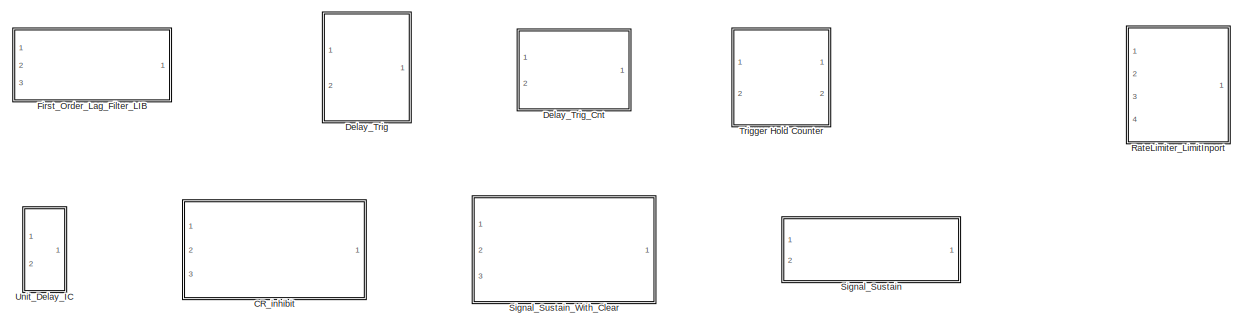
[diagram: root canvas - part 1/2, full width, top band]
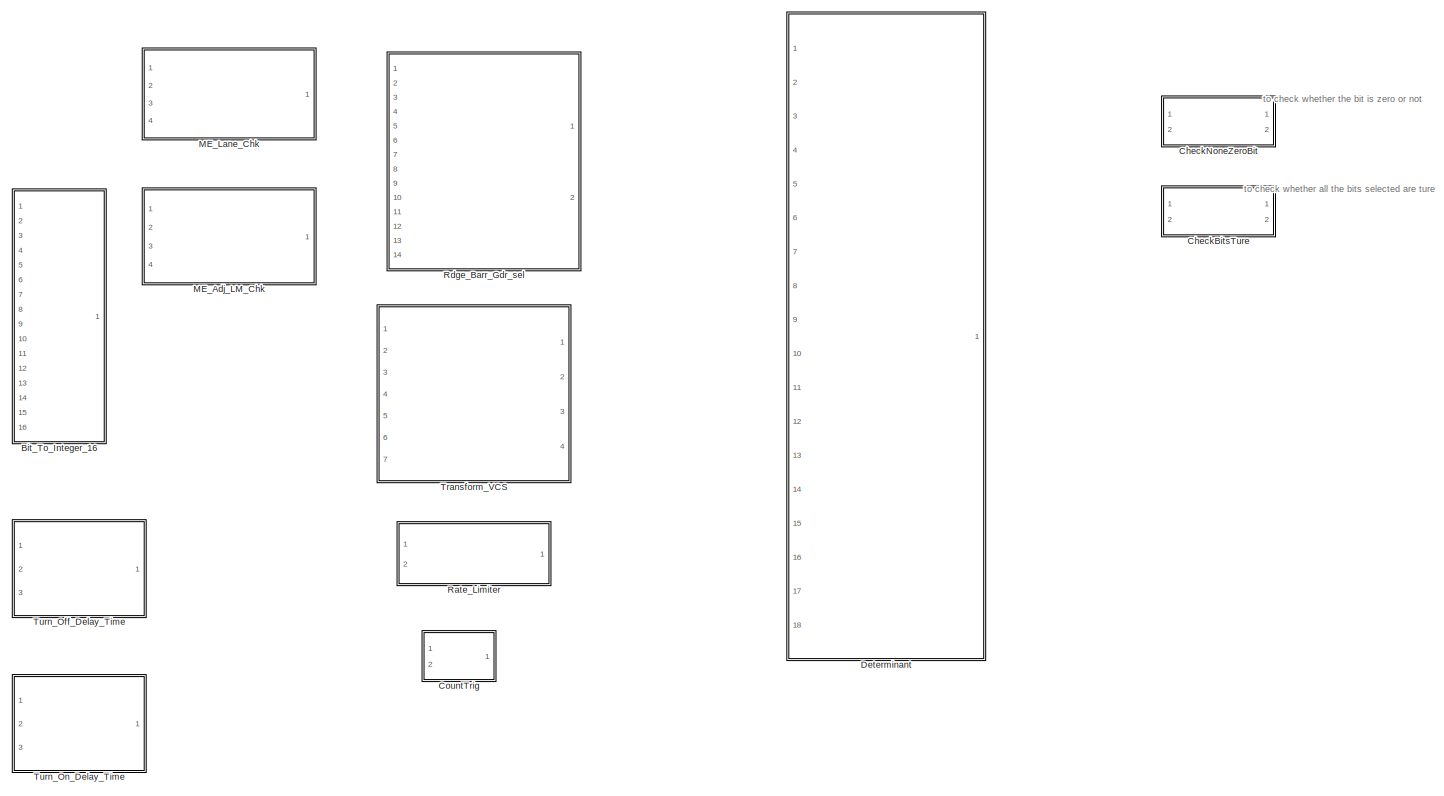
[diagram: root canvas - part 2/2, full width, bottom band]
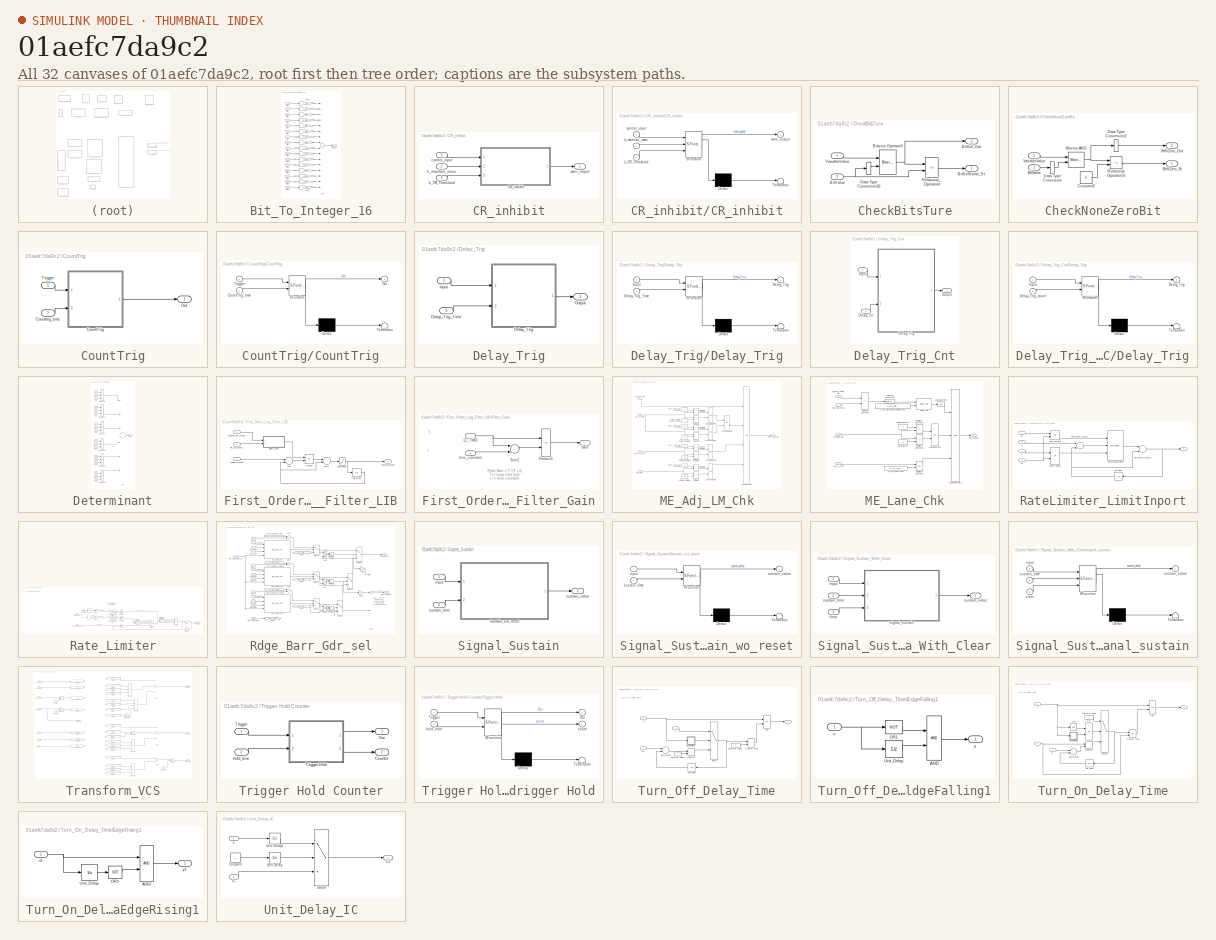
[diagram: thumbnail index - all 32 canvases of the model, root first then tree order]
MODEL slx_01aefc7da9c2
KIND library
CONFIG AbsTol = auto
CONFIG EnableMultiTasking = on
CONFIG FixedStep = auto
CONFIG MaxStep = auto
CONFIG MinStep = auto
CONFIG RelTol = 1e-3
CONFIG SampleTimeConstraint = Unconstrained
CONFIG Solver = ode45
CONFIG SolverName = ode45
CONFIG StartTime = 0.0
CONFIG StopTime = 10.0
BLOCK [SubSystem] Bit_To_Integer_16
  Ports = [16, 1]
  RequestExecContextInheritance = off
BLOCK [Sum] Bit_To_Integer_16/Add
  AccumDataTypeStr = uint16
  Description = _GWMAB30P3.LCKFN.000_1_
  InputSameDT = off
  Inputs = ++++++++++++++++
  OutDataTypeStr = uint16
  Ports = [16, 1]
  SaturateOnIntegerOverflow = off
  Tag = {'output',{'type','UInt16'},'date',737243.50070405088}
BLOCK [Inport] Bit_To_Integer_16/Bit0
  Description = _GWMH9P3.LCKFN.000_1_
  IconDisplay = Port number
BLOCK [Inport] Bit_To_Integer_16/Bit1
  Description = _GWMH9P3.LCKFN.000_2_
  IconDisplay = Port number
  Port = 2
BLOCK [Inport] Bit_To_Integer_16/Bit10
  Description = _GWMH9P3.LCKFN.000_11_
  IconDisplay = Port number
  Port = 11
BLOCK [Inport] Bit_To_Integer_16/Bit11
  Description = _GWMH9P3.LCKFN.000_12_
  IconDisplay = Port number
  Port = 12
BLOCK [Inport] Bit_To_Integer_16/Bit12
  Description = _GWMH9P3.LCKFN.000_13_
  IconDisplay = Port number
  Port = 13
BLOCK [Inport] Bit_To_Integer_16/Bit13
  Description = _GWMH9P3.LCKFN.000_14_
  IconDisplay = Port number
  Port = 14
BLOCK [Inport] Bit_To_Integer_16/Bit14
  Description = _GWMH9P3.LCKFN.000_15_
  IconDisplay = Port number
  Port = 15
BLOCK [Inport] Bit_To_Integer_16/Bit15
  Description = _GWMH9P3.LCKFN.000_16_
  IconDisplay = Port number
  Port = 16
BLOCK [Inport] Bit_To_Integer_16/Bit2
  Description = _GWMH9P3.LCKFN.000_3_
  IconDisplay = Port number
  Port = 3
BLOCK [Inport] Bit_To_Integer_16/Bit3
  Description = _GWMH9P3.LCKFN.000_4_
  IconDisplay = Port number
  Port = 4
BLOCK [Inport] Bit_To_Integer_16/Bit4
  Description = _GWMH9P3.LCKFN.000_5_
  IconDisplay = Port number
  Port = 5
BLOCK [Inport] Bit_To_Integer_16/Bit5
  Description = _GWMH9P3.LCKFN.000_6_
  IconDisplay = Port number
  Port = 6
BLOCK [Inport] Bit_To_Integer_16/Bit6
  Description = _GWMH9P3.LCKFN.000_7_
  IconDisplay = Port number
  Port = 7
BLOCK [Inport] Bit_To_Integer_16/Bit7
  Description = _GWMH9P3.LCKFN.000_8_
  IconDisplay = Port number
  Port = 8
BLOCK [Inport] Bit_To_Integer_16/Bit8
  Description = _GWMH9P3.LCKFN.000_9_
  IconDisplay = Port number
  Port = 9
BLOCK [Inport] Bit_To_Integer_16/Bit9
  Description = _GWMH9P3.LCKFN.000_10_
  IconDisplay = Port number
  Port = 10
BLOCK [Gain] Bit_To_Integer_16/Gain 0
  Description = _GWMAB30P3.LCKFN.000_2_
  Gain = c_BIT0
  OutDataTypeStr = uint16
  ParamDataTypeStr = uint16
  SaturateOnIntegerOverflow = off
  Tag = {'output',{'type','UInt16'},'gain',{'name','$P','class','EXTERN_CONST','type','UInt16'},'date',737243.62802085653}
BLOCK [Gain] Bit_To_Integer_16/Gain1
  Description = _GWMAB30P3.LCKFN.000_3_
  Gain = c_BIT1
  OutDataTypeStr = uint16
  ParamDataTypeStr = uint16
  SaturateOnIntegerOverflow = off
  Tag = {'output',{'type','UInt16'},'gain',{'name','$P','class','EXTERN_CONST','type','UInt16'},'date',737243.62814724538}
BLOCK [Gain] Bit_To_Integer_16/Gain10
  Description = _GWMAB30P3.LCKFN.000_4_
  Gain = c_BIT10
  OutDataTypeStr = uint16
  ParamDataTypeStr = uint16
  SaturateOnIntegerOverflow = off
  Tag = {'output',{'type','UInt16'},'gain',{'name','$P','class','EXTERN_CONST','type','UInt16'},'date',737243.63142819447}
BLOCK [Gain] Bit_To_Integer_16/Gain11
  Description = _GWMAB30P3.LCKFN.000_5_
  Gain = c_BIT11
  OutDataTypeStr = uint16
  ParamDataTypeStr = uint16
  SaturateOnIntegerOverflow = off
  Tag = {'output',{'type','UInt16'},'gain',{'name','$P','class','EXTERN_CONST','type','UInt16'},'date',737243.63154284726}
BLOCK [Gain] Bit_To_Integer_16/Gain12
  Description = _GWMAB30P3.LCKFN.000_6_
  Gain = c_BIT12
  OutDataTypeStr = uint16
  ParamDataTypeStr = uint16
  SaturateOnIntegerOverflow = off
  Tag = {'output',{'type','UInt16'},'gain',{'name','$P','class','EXTERN_CONST','type','UInt16'},'date',737243.63166906254}
BLOCK [Gain] Bit_To_Integer_16/Gain13
  Description = _GWMAB30P3.LCKFN.000_7_
  Gain = c_BIT13
  OutDataTypeStr = uint16
  ParamDataTypeStr = uint16
  SaturateOnIntegerOverflow = off
  Tag = {'output',{'type','UInt16'},'gain',{'name','$P','class','EXTERN_CONST','type','UInt16'},'date',737243.63180953707}
BLOCK [Gain] Bit_To_Integer_16/Gain14
  Description = _GWMAB30P3.LCKFN.000_8_
  Gain = c_BIT14
  OutDataTypeStr = uint16
  ParamDataTypeStr = uint16
  SaturateOnIntegerOverflow = off
  Tag = {'output',{'type','UInt16'},'gain',{'name','$P','class','EXTERN_CONST','type','UInt16'},'date',737243.63191913196}
BLOCK [Gain] Bit_To_Integer_16/Gain15
  Description = _GWMAB30P3.LCKFN.000_9_
  Gain = c_BIT15
  OutDataTypeStr = uint16
  ParamDataTypeStr = uint16
  SaturateOnIntegerOverflow = off
  Tag = {'output',{'type','UInt16'},'gain',{'name','$P','class','EXTERN_CONST','type','UInt16'},'date',737243.63202458329}
BLOCK [Gain] Bit_To_Integer_16/Gain2
  Description = _GWMAB30P3.LCKFN.000_10_
  Gain = c_BIT2
  OutDataTypeStr = uint16
  ParamDataTypeStr = uint16
  SaturateOnIntegerOverflow = off
  Tag = {'output',{'type','UInt16'},'gain',{'name','$P','class','EXTERN_CONST','type','UInt16'},'date',737243.62828194443}
BLOCK [Gain] Bit_To_Integer_16/Gain3
  Description = _GWMAB30P3.LCKFN.000_11_
  Gain = c_BIT3
  OutDataTypeStr = uint16
  ParamDataTypeStr = uint16
  SaturateOnIntegerOverflow = off
  Tag = {'output',{'type','UInt16'},'gain',{'name','$P','class','EXTERN_CONST','type','UInt16'},'date',737243.62842260418}
BLOCK [Gain] Bit_To_Integer_16/Gain4
  Description = _GWMAB30P3.LCKFN.000_12_
  Gain = c_BIT4
  OutDataTypeStr = uint16
  ParamDataTypeStr = uint16
  SaturateOnIntegerOverflow = off
  Tag = {'output',{'type','UInt16'},'gain',{'name','$P','class','EXTERN_CONST','type','UInt16'},'date',737243.63042121532}
BLOCK [Gain] Bit_To_Integer_16/Gain5
  Description = _GWMAB30P3.LCKFN.000_13_
  Gain = c_BIT5
  OutDataTypeStr = uint16
  ParamDataTypeStr = uint16
  SaturateOnIntegerOverflow = off
  Tag = {'output',{'type','UInt16'},'gain',{'name','$P','class','EXTERN_CONST','type','UInt16'},'date',737243.63074442127}
BLOCK [Gain] Bit_To_Integer_16/Gain6
  Description = _GWMAB30P3.LCKFN.000_14_
  Gain = c_BIT6
  OutDataTypeStr = uint16
  ParamDataTypeStr = uint16
  SaturateOnIntegerOverflow = off
  Tag = {'output',{'type','UInt16'},'gain',{'name','$P','class','EXTERN_CONST','type','UInt16'},'date',737243.63092443289}
BLOCK [Gain] Bit_To_Integer_16/Gain7
  Description = _GWMAB30P3.LCKFN.000_15_
  Gain = c_BIT7
  OutDataTypeStr = uint16
  ParamDataTypeStr = uint16
  SaturateOnIntegerOverflow = off
  Tag = {'output',{'type','UInt16'},'gain',{'name','$P','class','EXTERN_CONST','type','UInt16'},'date',737243.63104162039}
BLOCK [Gain] Bit_To_Integer_16/Gain8
  Description = _GWMAB30P3.LCKFN.000_16_
  Gain = c_BIT8
  OutDataTypeStr = uint16
  ParamDataTypeStr = uint16
  SaturateOnIntegerOverflow = off
  Tag = {'output',{'type','UInt16'},'gain',{'name','$P','class','EXTERN_CONST','type','UInt16'},'date',737243.63116565975}
BLOCK [Gain] Bit_To_Integer_16/Gain9
  Description = _GWMAB30P3.LCKFN.000_17_
  Gain = c_BIT9
  OutDataTypeStr = uint16
  ParamDataTypeStr = uint16
  SaturateOnIntegerOverflow = off
  Tag = {'output',{'type','UInt16'},'gain',{'name','$P','class','EXTERN_CONST','type','UInt16'},'date',737243.63129422453}
BLOCK [Outport] Bit_To_Integer_16/Integer
  Description = _GWMH9P3.LCKFN.000_17_
  IconDisplay = Port number
BLOCK [SubSystem] CR_inhibit
  Description = _GWMAB30P4.Latctrl.000_128_
  Ports = [3, 1]
  RequestExecContextInheritance = off
BLOCK [SubSystem] CR_inhibit/CR_inhibit
  Description = _GWMAB30P4.LKAFN.000_5_
  ErrorFcn = Stateflow.Translate.translate
  PermitHierarchicalResolution = ExplicitOnly
  Ports = [3, 1]
  RequestExecContextInheritance = off
  SFBlockType = Chart
  TreatAsAtomicUnit = on
BLOCK [Demux] CR_inhibit/CR_inhibit/ Demux 
  Outputs = 1
  Ports = [1, 1]
BLOCK [S-Function] CR_inhibit/CR_inhibit/ SFunction 
  EnableBusSupport = off
  FunctionName = sf_sfun
  Parameters = ML_TIME_MSEC
  PortCounts = [3 2]
  Ports = [3, 2]
  SFcnIsStateOwnerBlock = off
  SFunctionDeploymentMode = off
  Tag = Stateflow S-Function LateralControl_fcns_lib 201
BLOCK [Terminator] CR_inhibit/CR_inhibit/ Terminator 
BLOCK [Inport] CR_inhibit/CR_inhibit/current_input
  Description = _GWMAB30P4.LKAFN.000_6_
  IconDisplay = Port number
BLOCK [Inport] CR_inhibit/CR_inhibit/k_CR_Threshold
  Description = _GWMAB30P4.LKAFN.000_8_
  IconDisplay = Port number
  Port = 3
BLOCK [Inport] CR_inhibit/CR_inhibit/k_mantian_msec
  Description = _GWMAB30P4.LKAFN.000_7_
  IconDisplay = Port number
  Port = 2
BLOCK [Outport] CR_inhibit/CR_inhibit/warn_output
  Description = _GWMAB30P4.LKAFN.000_9_
  IconDisplay = Port number
BLOCK [Inport] CR_inhibit/current_input
  Description = _GWMAB30P4.LKAFN.000_2_
  IconDisplay = Port number
BLOCK [Inport] CR_inhibit/k_CR_Threshold
  Description = _GWMAB30P4.LKAFN.000_4_
  IconDisplay = Port number
  Port = 3
BLOCK [Inport] CR_inhibit/k_maintain_msec
  Description = _GWMAB30P4.LKAFN.000_3_
  IconDisplay = Port number
  Port = 2
BLOCK [Outport] CR_inhibit/warn_output
  Description = _GWMAB30P4.LKAFN.000_10_
  IconDisplay = Port number
BLOCK [SubSystem] CheckBitsTure
  Ports = [2, 2]
  RequestExecContextInheritance = off
BLOCK [Outport] CheckBitsTure/BitSelSame_St
  IconDisplay = Port number
BLOCK [Outport] CheckBitsTure/BitSel_Out
  IconDisplay = Port number
  Port = 2
BLOCK [Inport] CheckBitsTure/BitValue
  IconDisplay = Port number
  Port = 2
BLOCK [Reference] CheckBitsTure/Bitwise Operator5  REF=simulink/Logic and Bit
Operations/Bitwise
Operator
  Ports = [2, 1]
  SourceBlock = simulink/Logic and Bit\nOperations/Bitwise\nOperator
  SourceProductBaseCode = SL
  SourceProductName = Simulink
  SourceType = Bitwise Operator
BLOCK [DataTypeConversion] CheckBitsTure/Data Type Conversion26
  RndMeth = Floor
  SaturateOnIntegerOverflow = off
BLOCK [RelationalOperator] CheckBitsTure/Relational_Operator4
  InputSameDT = off
  Operator = ==
  OutDataTypeStr = boolean
  Ports = [2, 1]
BLOCK [Inport] CheckBitsTure/VariableValue
  IconDisplay = Port number
BLOCK [SubSystem] CheckNoneZeroBit
  Ports = [2, 2]
  RequestExecContextInheritance = off
BLOCK [Outport] CheckNoneZeroBit/BitNZero_Out
  IconDisplay = Port number
  Port = 2
BLOCK [Outport] CheckNoneZeroBit/BitNZero_St
  IconDisplay = Port number
BLOCK [Inport] CheckNoneZeroBit/BitValue
  IconDisplay = Port number
  Port = 2
BLOCK [Reference] CheckNoneZeroBit/Bitwise AND  REF=simulink/Logic and Bit
Operations/Bitwise
Operator
  Ports = [2, 1]
  SourceBlock = simulink/Logic and Bit\nOperations/Bitwise\nOperator
  SourceProductBaseCode = SL
  SourceProductName = Simulink
  SourceType = Bitwise Operator
BLOCK [Constant] CheckNoneZeroBit/Constant8
  Value = 0
BLOCK [DataTypeConversion] CheckNoneZeroBit/Data Type Conversion
  RndMeth = Floor
  SaturateOnIntegerOverflow = off
BLOCK [DataTypeConversion] CheckNoneZeroBit/Data Type Conversion2
  OutDataTypeStr = uint16
  RndMeth = Floor
  SaturateOnIntegerOverflow = off
BLOCK [RelationalOperator] CheckNoneZeroBit/Relational Operator14
  InputSameDT = off
  Operator = ~=
  OutDataTypeStr = boolean
  Ports = [2, 1]
BLOCK [Inport] CheckNoneZeroBit/VariableValue
  IconDisplay = Port number
BLOCK [SubSystem] CountTrig
  Ports = [2, 1]
  RequestExecContextInheritance = off
BLOCK [SubSystem] CountTrig/CountTrig
  ErrorFcn = Stateflow.Translate.translate
  PermitHierarchicalResolution = ExplicitOnly
  Ports = [2, 1]
  RequestExecContextInheritance = off
  SFBlockType = Chart
  TreatAsAtomicUnit = on
BLOCK [Demux] CountTrig/CountTrig/ Demux 
  Outputs = 1
  Ports = [1, 1]
BLOCK [S-Function] CountTrig/CountTrig/ SFunction 
  EnableBusSupport = off
  FunctionName = sf_sfun
  Parameters = ML_TIME_MSEC
  PortCounts = [2 2]
  Ports = [2, 2]
  SFcnIsStateOwnerBlock = off
  SFunctionDeploymentMode = off
  Tag = Stateflow S-Function LateralControl_fcns_lib 23
BLOCK [Terminator] CountTrig/CountTrig/ Terminator 
BLOCK [Inport] CountTrig/CountTrig/CountTrig_time
  Description = _GWMH9P4.LCKFN.000_4_
  IconDisplay = Port number
  Port = 2
BLOCK [Outport] CountTrig/CountTrig/Out
  Description = _GWMH9P4.LCKFN.000_5_
  IconDisplay = Port number
BLOCK [Inport] CountTrig/CountTrig/Trigger
  Description = _GWMH9P4.LCKFN.000_3_
  IconDisplay = Port number
BLOCK [Inport] CountTrig/Counttrig_time
  Description = _GWMH9P4.LCKFN.000_2_
  IconDisplay = Port number
  Port = 2
BLOCK [Outport] CountTrig/Out
  Description = _GWMH9P4.LCKFN.000_6_
  IconDisplay = Port number
BLOCK [Inport] CountTrig/Trigger
  Description = _GWMH9P4.LCKFN.000_1_
  IconDisplay = Port number
BLOCK [SubSystem] Delay_Trig
  Ports = [2, 1]
  RequestExecContextInheritance = off
BLOCK [SubSystem] Delay_Trig/Delay_Trig
  ErrorFcn = Stateflow.Translate.translate
  PermitHierarchicalResolution = ExplicitOnly
  Ports = [2, 1]
  RequestExecContextInheritance = off
  SFBlockType = Chart
  TreatAsAtomicUnit = on
BLOCK [Demux] Delay_Trig/Delay_Trig/ Demux 
  Outputs = 1
  Ports = [1, 1]
BLOCK [S-Function] Delay_Trig/Delay_Trig/ SFunction 
  EnableBusSupport = off
  FunctionName = sf_sfun
  Parameters = ML_TIME_SEC
  PortCounts = [2 2]
  Ports = [2, 2]
  SFcnIsStateOwnerBlock = off
  SFunctionDeploymentMode = off
  Tag = Stateflow S-Function LateralControl_fcns_lib 1
BLOCK [Terminator] Delay_Trig/Delay_Trig/ Terminator 
BLOCK [Outport] Delay_Trig/Delay_Trig/Delay_Trig
  Description = _GWMH9P4.LCKFN.000_9_
  IconDisplay = Port number
BLOCK [Inport] Delay_Trig/Delay_Trig/Delay_Trig_Time
  Description = _GWMH9P4.LCKFN.000_8_
  IconDisplay = Port number
  Port = 2
BLOCK [Inport] Delay_Trig/Delay_Trig/Input
  Description = _GWMH9P4.LCKFN.000_7_
  IconDisplay = Port number
BLOCK [Inport] Delay_Trig/Delay_Trig_Time
  Description = _GWMH9P3.LCKFN.000_19_
  IconDisplay = Port number
  Port = 2
BLOCK [Inport] Delay_Trig/Input
  Description = _GWMH9P3.LCKFN.000_18_
  IconDisplay = Port number
BLOCK [Outport] Delay_Trig/Output
  Description = _GWMH9P3.LCKFN.000_23_
  IconDisplay = Port number
BLOCK [SubSystem] Delay_Trig_Cnt
  Description = _GWMAB30P4.LKAFN.000_28_
  Ports = [2, 1]
  RequestExecContextInheritance = off
BLOCK [Inport] Delay_Trig_Cnt/Delay_Cnt
  Description = _GWMAB30P4.LKAFN.000_30_
  IconDisplay = Port number
  Port = 2
BLOCK [SubSystem] Delay_Trig_Cnt/Delay_Trig
  Description = _GWMAB30P4.LKAFN.000_31_
  ErrorFcn = Stateflow.Translate.translate
  PermitHierarchicalResolution = ExplicitOnly
  Ports = [2, 1]
  RequestExecContextInheritance = off
  SFBlockType = Chart
  TreatAsAtomicUnit = on
BLOCK [Demux] Delay_Trig_Cnt/Delay_Trig/ Demux 
  Outputs = 1
  Ports = [1, 1]
BLOCK [S-Function] Delay_Trig_Cnt/Delay_Trig/ SFunction 
  EnableBusSupport = off
  FunctionName = sf_sfun
  PortCounts = [2 2]
  Ports = [2, 2]
  SFcnIsStateOwnerBlock = off
  SFunctionDeploymentMode = off
  Tag = Stateflow S-Function LateralControl_fcns_lib 19
BLOCK [Terminator] Delay_Trig_Cnt/Delay_Trig/ Terminator 
BLOCK [Outport] Delay_Trig_Cnt/Delay_Trig/Delay_Trig
  Description = _GWMAB30P4.LKAFN.000_34_
  IconDisplay = Port number
BLOCK [Inport] Delay_Trig_Cnt/Delay_Trig/Delay_Trig_count
  Description = _GWMAB30P4.LKAFN.000_33_
  IconDisplay = Port number
  Port = 2
BLOCK [Inport] Delay_Trig_Cnt/Delay_Trig/Input
  Description = _GWMAB30P4.LKAFN.000_32_
  IconDisplay = Port number
BLOCK [Inport] Delay_Trig_Cnt/Input
  Description = _GWMAB30P4.LKAFN.000_29_
  IconDisplay = Port number
BLOCK [Outport] Delay_Trig_Cnt/Output
  Description = _GWMAB30P4.LKAFN.000_35_
  IconDisplay = Port number
BLOCK [SubSystem] Determinant
  Ports = [18, 1]
  RequestExecContextInheritance = off
BLOCK [Sum] Determinant/Add
  Description = _GWMH9P4.LCKFN.000_28_
  InputSameDT = off
  Inputs = +++---
  OutDataTypeStr = Inherit: Inherit via internal rule
  Ports = [6, 1]
  SaturateOnIntegerOverflow = off
  Tag = {'output',{'type','Float32'},'date',737462.84083193284}
BLOCK [Inport] Determinant/In1
  Description = _GWMH9P4.LCKFN.000_10_
  IconDisplay = Port number
  Tag = {'output',{'type','Float32'},'date',737464.8958215625}
BLOCK [Inport] Determinant/In10
  Description = _GWMH9P4.LCKFN.000_19_
  IconDisplay = Port number
  Port = 10
  Tag = {'output',{'type','Float32'},'date',737464.89651208336}
BLOCK [Inport] Determinant/In11
  Description = _GWMH9P4.LCKFN.000_20_
  IconDisplay = Port number
  Port = 11
  Tag = {'output',{'type','Float32'},'date',737464.89657822915}
BLOCK [Inport] Determinant/In12
  Description = _GWMH9P4.LCKFN.000_21_
  IconDisplay = Port number
  Port = 12
  Tag = {'output',{'type','Float32'},'date',737464.8966244444}
BLOCK [Inport] Determinant/In13
  Description = _GWMH9P4.LCKFN.000_22_
  IconDisplay = Port number
  Port = 13
  Tag = {'output',{'type','Float32'},'date',737464.896679456}
BLOCK [Inport] Determinant/In14
  Description = _GWMH9P4.LCKFN.000_23_
  IconDisplay = Port number
  Port = 14
  Tag = {'output',{'type','Float32'},'date',737464.89673541661}
BLOCK [Inport] Determinant/In15
  Description = _GWMH9P4.LCKFN.000_24_
  IconDisplay = Port number
  Port = 15
  Tag = {'output',{'type','Float32'},'date',737464.89679289353}
BLOCK [Inport] Determinant/In16
  Description = _GWMH9P4.LCKFN.000_25_
  IconDisplay = Port number
  Port = 16
  Tag = {'output',{'type','Float32'},'date',737464.89685541671}
BLOCK [Inport] Determinant/In17
  Description = _GWMH9P4.LCKFN.000_26_
  IconDisplay = Port number
  Port = 17
  Tag = {'output',{'type','Float32'},'date',737464.89690805553}
BLOCK [Inport] Determinant/In18
  Description = _GWMH9P4.LCKFN.000_27_
  IconDisplay = Port number
  Port = 18
  Tag = {'output',{'type','Float32'},'date',737464.89696628472}
BLOCK [Inport] Determinant/In2
  Description = _GWMH9P4.LCKFN.000_11_
  IconDisplay = Port number
  Port = 2
  Tag = {'output',{'type','Float32'},'date',737464.8958774074}
BLOCK [Inport] Determinant/In3
  Description = _GWMH9P4.LCKFN.000_12_
  IconDisplay = Port number
  Port = 3
  Tag = {'output',{'type','Float32'},'date',737464.89607775467}
BLOCK [Inport] Determinant/In4
  Description = _GWMH9P4.LCKFN.000_13_
  IconDisplay = Port number
  Port = 4
  Tag = {'output',{'type','Float32'},'date',737464.8961349884}
BLOCK [Inport] Determinant/In5
  Description = _GWMH9P4.LCKFN.000_14_
  IconDisplay = Port number
  Port = 5
  Tag = {'output',{'type','Float32'},'date',737464.89620260417}
BLOCK [Inport] Determinant/In6
  Description = _GWMH9P4.LCKFN.000_15_
  IconDisplay = Port number
  Port = 6
  Tag = {'output',{'type','Float32'},'date',737464.89625967597}
BLOCK [Inport] Determinant/In7
  Description = _GWMH9P4.LCKFN.000_16_
  IconDisplay = Port number
  Port = 7
  Tag = {'output',{'type','Float32'},'date',737464.89632886578}
BLOCK [Inport] Determinant/In8
  Description = _GWMH9P4.LCKFN.000_17_
  IconDisplay = Port number
  Port = 8
  Tag = {'output',{'type','Float32'},'date',737464.89639204857}
BLOCK [Inport] Determinant/In9
  Description = _GWMH9P4.LCKFN.000_18_
  IconDisplay = Port number
  Port = 9
  Tag = {'output',{'type','Float32'},'date',737464.89645353006}
BLOCK [Outport] Determinant/Out1
  Description = _GWMH9P4.LCKFN.000_35_
  IconDisplay = Port number
  Tag = {'output',{'name','Determinant_out','class','ESR_VC/FCN_RETURN','type','Float32'},'date',737464.89569219912}
BLOCK [Product] Determinant/Product10
  Description = _GWMH9P4.LCKFN.000_29_
  InputSameDT = off
  Inputs = 3
  OutDataTypeStr = Inherit: Inherit via internal rule
  Ports = [3, 1]
  SaturateOnIntegerOverflow = off
  Tag = {'output',{'type','Float32'},'date',737462.84057671297}
BLOCK [Product] Determinant/Product11
  Description = _GWMH9P4.LCKFN.000_30_
  InputSameDT = off
  Inputs = 3
  OutDataTypeStr = Inherit: Inherit via internal rule
  Ports = [3, 1]
  SaturateOnIntegerOverflow = off
  Tag = {'output',{'type','Float32'},'date',737462.8406229167}
BLOCK [Product] Determinant/Product12
  Description = _GWMH9P4.LCKFN.000_31_
  InputSameDT = off
  Inputs = 3
  OutDataTypeStr = Inherit: Inherit via internal rule
  Ports = [3, 1]
  SaturateOnIntegerOverflow = off
  Tag = {'output',{'type','Float32'},'date',737462.84072949074}
BLOCK [Product] Determinant/Product13
  Description = _GWMH9P4.LCKFN.000_32_
  InputSameDT = off
  Inputs = 3
  OutDataTypeStr = Inherit: Inherit via internal rule
  Ports = [3, 1]
  SaturateOnIntegerOverflow = off
  Tag = {'output',{'type','Float32'},'date',737462.84078811342}
BLOCK [Product] Determinant/Product14
  Description = _GWMH9P4.LCKFN.000_33_
  InputSameDT = off
  Inputs = 3
  OutDataTypeStr = Inherit: Inherit via internal rule
  Ports = [3, 1]
  SaturateOnIntegerOverflow = off
  Tag = {'output',{'type','Float32'},'date',737462.84066295135}
BLOCK [Product] Determinant/Product9
  Description = _GWMH9P4.LCKFN.000_34_
  InputSameDT = off
  Inputs = 3
  OutDataTypeStr = Inherit: Inherit via internal rule
  Ports = [3, 1]
  SaturateOnIntegerOverflow = off
  Tag = {'output',{'type','Float32'},'date',737462.8405174769}
BLOCK [SubSystem] First_Order_Lag_Filter_LIB
  Ports = [3, 1]
  RequestExecContextInheritance = off
BLOCK [SubSystem] First_Order_Lag_Filter_LIB/Filter_Gain
  Ports = [2, 1]
  RequestExecContextInheritance = off
BLOCK [Inport] First_Order_Lag_Filter_LIB/Filter_Gain/CL_TIME
  Description = _GWMAB30P4.LKAFN.000_142_
  IconDisplay = Port number
BLOCK [Outport] First_Order_Lag_Filter_LIB/Filter_Gain/Gain
  Description = _GWMAB30P4.LKAFN.000_146_
  IconDisplay = Port number
BLOCK [Product] First_Order_Lag_Filter_LIB/Filter_Gain/Product1
  Description = _GWMAB30P4.LKAFN.000_144_
  InputSameDT = off
  Inputs = */
  OutDataTypeStr = Inherit: Inherit via internal rule
  Ports = [2, 1]
  RndMeth = Floor
  SaturateOnIntegerOverflow = off
BLOCK [Sum] First_Order_Lag_Filter_LIB/Filter_Gain/Sum2
  Description = _GWMAB30P4.LKAFN.000_145_
  InputSameDT = off
  Ports = [2, 1]
  SaturateOnIntegerOverflow = off
BLOCK [Inport] First_Order_Lag_Filter_LIB/Filter_Gain/time_constant
  Description = _GWMAB30P4.LKAFN.000_143_
  IconDisplay = Port number
  Port = 2
BLOCK [Product] First_Order_Lag_Filter_LIB/Product
  Description = _GWMAB30P4.LKAFN.000_153_
  InputSameDT = off
  Inputs = **
  OutDataTypeStr = Inherit: Inherit via internal rule
  Ports = [2, 1]
  RndMeth = Floor
  SaturateOnIntegerOverflow = off
BLOCK [Saturate] First_Order_Lag_Filter_LIB/Saturation
  Description = _GWMAB30P4.LKAFN.000_154_
  InputPortMap = u0
  LowerLimit = -65535
  Ports = [1, 1]
  UpperLimit = 65535
BLOCK [Sum] First_Order_Lag_Filter_LIB/Sum
  Description = _GWMAB30P4.LKAFN.000_155_
  InputSameDT = off
  Inputs = +-
  Ports = [2, 1]
  SaturateOnIntegerOverflow = off
BLOCK [Sum] First_Order_Lag_Filter_LIB/Sum1
  Description = _GWMAB30P4.LKAFN.000_156_
  InputSameDT = off
  Ports = [2, 1]
  SaturateOnIntegerOverflow = off
BLOCK [UnitDelay] First_Order_Lag_Filter_LIB/Unit Delay
  Description = _GWMAB30P4.LKAFN.000_157_
  SampleTime = -1
BLOCK [Inport] First_Order_Lag_Filter_LIB/filt_loop_time_msec
  Description = _GWMAB30P4.LKAFN.000_150_
  IconDisplay = Port number
  Port = 3
BLOCK [Inport] First_Order_Lag_Filter_LIB/filt_tau_msec
  Description = _GWMAB30P4.LKAFN.000_149_
  IconDisplay = Port number
  Port = 2
BLOCK [Outport] First_Order_Lag_Filter_LIB/filtered_output
  Description = _GWMAB30P4.LKAFN.000_158_
  IconDisplay = Port number
BLOCK [Inport] First_Order_Lag_Filter_LIB/unfiltered_input
  Description = _GWMAB30P4.LKAFN.000_148_
  IconDisplay = Port number
BLOCK [SubSystem] ME_Adj_LM_Chk
  Ports = [4, 1]
  RequestExecContextInheritance = off
BLOCK [Inport] ME_Adj_LM_Chk/LW_bound_type
  Description = _GWMH9P3.LCKFN.000_26_
  IconDisplay = Port number
  Port = 3
BLOCK [Logic] ME_Adj_LM_Chk/Logical Operator1
  AllPortsSameDT = off
  Description = _GWMH9P3.LCKFN.000_28_
  Inputs = 4
  OutDataTypeStr = boolean
  Ports = [4, 1]
  Tag = {'date',737393.51890250004}
BLOCK [Logic] ME_Adj_LM_Chk/Logical Operator2
  AllPortsSameDT = off
  Description = _GWMH9P3.LCKFN.000_29_
  OutDataTypeStr = boolean
  Ports = [2, 1]
  Tag = {'date',737393.51890320599}
BLOCK [Logic] ME_Adj_LM_Chk/Logical Operator3
  AllPortsSameDT = off
  Description = _GWMH9P3.LCKFN.000_30_
  OutDataTypeStr = boolean
  Ports = [2, 1]
  Tag = {'date',737393.51890342589}
BLOCK [Logic] ME_Adj_LM_Chk/Logical Operator4
  AllPortsSameDT = off
  Description = _GWMH9P3.LCKFN.000_31_
  OutDataTypeStr = boolean
  Ports = [2, 1]
  Tag = {'date',737393.5189036458}
BLOCK [Logic] ME_Adj_LM_Chk/Logical Operator5
  AllPortsSameDT = off
  Description = _GWMH9P3.LCKFN.000_32_
  OutDataTypeStr = boolean
  Ports = [2, 1]
  Tag = {'date',737393.51890388888}
BLOCK [Logic] ME_Adj_LM_Chk/Logical Operator6
  AllPortsSameDT = off
  Description = _GWMH9P3.LCKFN.000_33_
  Operator = OR
  OutDataTypeStr = boolean
  Ports = [2, 1]
  Tag = {'date',737393.51890412043}
BLOCK [Inport] ME_Adj_LM_Chk/Min_offset
  Description = _GWMH9P3.LCKFN.000_27_
  IconDisplay = Port number
  Port = 4
BLOCK [Constant] ME_Adj_LM_Chk/POLY_TYPE_FUSED_BARRIER
  Description = _GWMH9P3.LCKFN.000_34_
  SampleTime = -1
  Tag = {'output',{'type','Int32'},'date',737393.51890491904}
  Value = 8
BLOCK [Constant] ME_Adj_LM_Chk/POLY_TYPE_FUSED_BARRIER1
  Description = _GWMH9P3.LCKFN.000_35_
  SampleTime = -1
  Tag = {'output',{'type','Int32'},'date',737393.51890531252}
  Value = 2.5
BLOCK [Constant] ME_Adj_LM_Chk/POLY_TYPE_FUSED_BARRIER2
  Description = _GWMH9P3.LCKFN.000_36_
  SampleTime = -1
  Tag = {'output',{'type','Int32'},'date',737393.5189055556}
  Value = 3
BLOCK [Constant] ME_Adj_LM_Chk/POLY_TYPE_FUSED_BARRIER3
  Description = _GWMH9P3.LCKFN.000_37_
  SampleTime = -1
  Tag = {'output',{'type','Int32'},'date',737393.51890578703}
  Value = 12
BLOCK [Constant] ME_Adj_LM_Chk/POLY_TYPE_LM_BARRIER
  Description = _GWMH9P3.LCKFN.000_38_
  SampleTime = -1
  Tag = {'output',{'type','Int32'},'date',737393.51890601846}
  Value = 5
BLOCK [Constant] ME_Adj_LM_Chk/POLY_TYPE_LM_BARRIER1
  Description = _GWMH9P3.LCKFN.000_39_
  SampleTime = -1
  Tag = {'output',{'type','Int32'},'date',737393.51890626154}
  Value = 1.2
BLOCK [Constant] ME_Adj_LM_Chk/POLY_TYPE_LM_BARRIER2
  Description = _GWMH9P3.LCKFN.000_40_
  SampleTime = -1
  Tag = {'output',{'type','Int32'},'date',737393.51890650461}
BLOCK [Constant] ME_Adj_LM_Chk/POLY_TYPE_LM_BARRIER3
  Description = _GWMH9P3.LCKFN.000_41_
  SampleTime = -1
  Tag = {'output',{'type','Int32'},'date',737393.51890672452}
  Value = 9
BLOCK [Outport] ME_Adj_LM_Chk/Rdge_Barr_Valid
  Description = _GWMH9P3.LCKFN.000_50_
  IconDisplay = Port number
BLOCK [RelationalOperator] ME_Adj_LM_Chk/Relational Operator1
  Description = _GWMH9P3.LCKFN.000_42_
  InputSameDT = off
  Operator = <=
  OutDataTypeStr = boolean
  Ports = [2, 1]
  Tag = {'date',737393.51890695607}
BLOCK [RelationalOperator] ME_Adj_LM_Chk/Relational Operator2
  Description = _GWMH9P3.LCKFN.000_43_
  InputSameDT = off
  Operator = <=
  OutDataTypeStr = boolean
  Ports = [2, 1]
  Tag = {'date',737393.51890716434}
BLOCK [RelationalOperator] ME_Adj_LM_Chk/Relational Operator3
  Description = _GWMH9P3.LCKFN.000_44_
  InputSameDT = off
  Operator = <=
  OutDataTypeStr = boolean
  Ports = [2, 1]
  Tag = {'date',737393.51890737272}
BLOCK [RelationalOperator] ME_Adj_LM_Chk/Relational Operator4
  Description = _GWMH9P3.LCKFN.000_45_
  InputSameDT = off
  Operator = <=
  OutDataTypeStr = boolean
  Ports = [2, 1]
  Tag = {'date',737393.51890755782}
BLOCK [RelationalOperator] ME_Adj_LM_Chk/Relational Operator5
  Description = _GWMH9P3.LCKFN.000_46_
  InputSameDT = off
  Operator = <=
  OutDataTypeStr = boolean
  Ports = [2, 1]
  Tag = {'date',737393.51890776621}
BLOCK [RelationalOperator] ME_Adj_LM_Chk/Relational Operator6
  Description = _GWMH9P3.LCKFN.000_47_
  InputSameDT = off
  Operator = <=
  OutDataTypeStr = boolean
  Ports = [2, 1]
  Tag = {'date',737393.51890796295}
BLOCK [RelationalOperator] ME_Adj_LM_Chk/Relational Operator7
  Description = _GWMH9P3.LCKFN.000_48_
  InputSameDT = off
  Operator = <=
  OutDataTypeStr = boolean
  Ports = [2, 1]
  Tag = {'date',737393.51890815969}
BLOCK [RelationalOperator] ME_Adj_LM_Chk/Relational Operator8
  Description = _GWMH9P3.LCKFN.000_49_
  InputSameDT = off
  Operator = <=
  OutDataTypeStr = boolean
  Ports = [2, 1]
  Tag = {'date',737393.51890836807}
BLOCK [Inport] ME_Adj_LM_Chk/SP_LW_state
  Description = _GWMH9P3.LCKFN.000_25_
  IconDisplay = Port number
  Port = 2
BLOCK [Inport] ME_Adj_LM_Chk/SP_type_valid
  Description = _GWMH9P3.LCKFN.000_24_
  IconDisplay = Port number
BLOCK [SubSystem] ME_Lane_Chk
  Ports = [4, 1]
  RequestExecContextInheritance = off
BLOCK [DataTypeConversion] ME_Lane_Chk/Data Type Conversion
  Description = _GWMH9P3.LCKFN.000_55_
  RndMeth = Floor
  SaturateOnIntegerOverflow = off
BLOCK [Reference] ME_Lane_Chk/Delay_Trig  REF=$bdroot/Delay_Trig
  Ports = [2, 1]
  SourceBlock = $bdroot/Delay_Trig
  SourceType = SubSystem
BLOCK [Inport] ME_Lane_Chk/LM_TJA_conf
  Description = _GWMH9P3.LCKFN.000_53_
  IconDisplay = Port number
  Port = 3
  Tag = {'output',{'name','$I_LM_TJA_conf','type','UInt8'},'date',737429.73083754629}
BLOCK [Inport] ME_Lane_Chk/LM_max_range_ME
  Description = _GWMH9P3.LCKFN.000_51_
  IconDisplay = Port number
  Tag = {'output',{'name','$I_LM_max_range_ME','type','Float32'},'date',737429.7295920949}
BLOCK [Inport] ME_Lane_Chk/LM_status_ME
  Description = _GWMH9P3.LCKFN.000_52_
  IconDisplay = Port number
  Port = 2
  Tag = {'output',{'name','$I_LM_status_ME','type','UInt8'},'date',737429.72993736109}
BLOCK [Logic] ME_Lane_Chk/Logical Operator
  AllPortsSameDT = off
  Description = _GWMAB30P3.LCKFN.000_18_
  OutDataTypeStr = boolean
  Ports = [2, 1]
  Tag = {'date',737237.63446607639}
BLOCK [Logic] ME_Lane_Chk/Logical Operator1
  AllPortsSameDT = off
  Description = _GWMAB30P3.LCKFN.000_19_
  Inputs = 3
  OutDataTypeStr = boolean
  Ports = [3, 1]
  Tag = {'date',737237.63446620374}
BLOCK [Logic] ME_Lane_Chk/Logical Operator3
  AllPortsSameDT = off
  Description = _GWMAB30P3.LCKFN.000_20_
  Inputs = 1
  Operator = NOT
  OutDataTypeStr = boolean
  Ports = [1, 1]
  Tag = {'date',737237.63446633099}
BLOCK [Outport] ME_Lane_Chk/ME_LM_Valid
  Description = _GWMH9P3.LCKFN.000_56_
  IconDisplay = Port number
  Tag = {'output',{'name','$I_ME_LM_Valid','class','ESR_VC/FCN_RETURN','type','Bool'},'date',737429.72934129625}
BLOCK [RelationalOperator] ME_Lane_Chk/Relational Operator1
  Description = _GWMAB30P3.LCKFN.000_21_
  InputSameDT = off
  OutDataTypeStr = boolean
  Ports = [2, 1]
  Tag = {'date',737237.6344665857}
BLOCK [RelationalOperator] ME_Lane_Chk/Relational Operator15
  Description = _GWMAB30P3.LCKFN.000_22_
  InputSameDT = off
  Operator = <=
  OutDataTypeStr = boolean
  Ports = [2, 1]
  Tag = {'date',737237.63446671295}
BLOCK [RelationalOperator] ME_Lane_Chk/Relational Operator18
  Description = _GWMAB30P3.LCKFN.000_23_
  InputSameDT = off
  Operator = <=
  OutDataTypeStr = boolean
  Ports = [2, 1]
  Tag = {'date',737237.63446682866}
BLOCK [RelationalOperator] ME_Lane_Chk/Relational Operator8
  Description = _GWMAB30P3.LCKFN.000_24_
  InputSameDT = off
  Operator = <=
  OutDataTypeStr = boolean
  Ports = [2, 1]
  Tag = {'date',737237.63446693285}
BLOCK [Constant] ME_Lane_Chk/TJA_SP_CONF_LOW
  Description = _GWMAB30P3.LCKFN.000_25_
  SampleTime = -1
  Tag = {'output',{'name','$P','class','EXTERN_MACRO','type','UInt8'},'date',737237.8042558796}
  Value = TJA_SP_CONF_LOW
BLOCK [Constant] ME_Lane_Chk/coast_measure
  Description = _GWMAB30P3.LCKFN.000_26_
  SampleTime = -1
  Tag = {'output',{'type','Int32'},'date',737237.6344671991}
  Value = 6
BLOCK [Constant] ME_Lane_Chk/k_LCK_Valid_Range_Remain_Tm_s
  Description = _GWMAB30P3.LCKFN.000_27_
  SampleTime = -1
  Tag = {'output',{'name','$P','class','EXTERN_CAL','type','Float32'},'date',737237.80413560185}
  Value = k_LCK_Valid_Range_Remain_Tm_s
BLOCK [Inport] ME_Lane_Chk/min_valid_range
  Description = _GWMH9P3.LCKFN.000_54_
  IconDisplay = Port number
  Port = 4
  Tag = {'output',{'name','$I_min_valid_range','type','UInt8'},'date',737429.72976344905}
BLOCK [Constant] ME_Lane_Chk/update_measure
  Description = _GWMAB30P3.LCKFN.000_28_
  SampleTime = -1
  Tag = {'output',{'type','Int32'},'date',737237.63446748839}
  Value = 5
BLOCK [SubSystem] RateLimiter_LimitInport
  AttributesFormatString = <Rate Limiter>
  Ports = [4, 1]
  RequestExecContextInheritance = off
BLOCK [Sum] RateLimiter_LimitInport/Difference Inputs1
  Description = Add in CPU
  InputSameDT = off
  Inputs = +-
  OutDataTypeStr = Inherit: Inherit via back propagation
  Ports = [2, 1]
  RndMeth = Zero
  SaturateOnIntegerOverflow = off
BLOCK [Sum] RateLimiter_LimitInport/Difference Inputs2
  Description = Add in CPU
  InputSameDT = off
  OutDataTypeStr = Inherit: Inherit via back propagation
  Ports = [2, 1]
  RndMeth = Zero
  SaturateOnIntegerOverflow = off
BLOCK [Reference] RateLimiter_LimitInport/SaturationDynamic  REF=simulink/Discontinuities/Saturation
Dynamic
  Ports = [3, 1]
  SourceBlock = simulink/Discontinuities/Saturation\nDynamic
  SourceProductBaseCode = SL
  SourceProductName = Simulink
  SourceType = Saturation Dynamic
BLOCK [UnitDelay] RateLimiter_LimitInport/Unit Delay
  InputProcessing = Elements as channels (sample based)
  SampleTime = -1
BLOCK [Outport] RateLimiter_LimitInport/Y
  IconDisplay = Port number
  InitialOutput = 0
BLOCK [Product] RateLimiter_LimitInport/delta fall limit
  InputSameDT = off
  Inputs = **
  OutDataTypeStr = Inherit: Inherit via back propagation
  Ports = [2, 1]
BLOCK [Product] RateLimiter_LimitInport/delta rise limit
  InputSameDT = off
  Inputs = **
  OutDataTypeStr = Inherit: Inherit via back propagation
  Ports = [2, 1]
BLOCK [Inport] RateLimiter_LimitInport/dt
  IconDisplay = Port number
  Port = 4
BLOCK [Inport] RateLimiter_LimitInport/lo
  IconDisplay = Port number
  Port = 3
BLOCK [Inport] RateLimiter_LimitInport/u
  IconDisplay = Port number
  Port = 2
BLOCK [Inport] RateLimiter_LimitInport/up
  IconDisplay = Port number
BLOCK [SubSystem] Rate_Limiter
  Ports = [2, 1]
  RequestExecContextInheritance = off
  TreatAsAtomicUnit = on
BLOCK [Reference] Rate_Limiter/Function  REF=tllib/Function
  Ports = []
  SourceBlock = tllib/Function
  SourceType = Dummy_Function
BLOCK [Gain] Rate_Limiter/Gain
  Description = _GWMH9P4.LCKFN.000_38_
  Gain = ML_TIME_MSEC
  OutDataTypeStr = Inherit: Inherit via internal rule
  ParamDataTypeStr = Inherit: Inherit via internal rule
  SaturateOnIntegerOverflow = off
  Tag = {'output',{'type','Float32'},'gain',{'name','$P','class','EXTERN_MACRO','type','ESR_Typedefs/unsigned8_T'},'date',737464.50571820606}
BLOCK [Gain] Rate_Limiter/Gain1
  Description = _GWMH9P4.LCKFN.000_39_
  Gain = ML_TIME_MSEC
  OutDataTypeStr = Inherit: Inherit via internal rule
  ParamDataTypeStr = Inherit: Inherit via internal rule
  SaturateOnIntegerOverflow = off
  Tag = {'output',{'type','Float32'},'gain',{'name','$P','class','EXTERN_MACRO','type','ESR_Typedefs/unsigned8_T'},'date',737464.50596844906}
BLOCK [Gain] Rate_Limiter/Gain2
  Description = _GWMH9P4.LCKFN.000_40_
  Gain = -1
  OutDataTypeStr = Inherit: Inherit via internal rule
  ParamDataTypeStr = Inherit: Inherit via internal rule
  SaturateOnIntegerOverflow = off
  Tag = {'output',{'type','Float32'},'gain',{'type','Int32'},'date',737462.83431409718}
BLOCK [Product] Rate_Limiter/Product
  Description = _GWMH9P4.LCKFN.000_41_
  Inputs = */
  Ports = [2, 1]
  RndMeth = Floor
  SaturateOnIntegerOverflow = off
  Tag = {'output',{'type','Float32'},'exceptionhandling',0,'date',737462.83562771988}
BLOCK [Product] Rate_Limiter/Product2
  Description = _GWMH9P4.LCKFN.000_42_
  Inputs = */
  Ports = [2, 1]
  RndMeth = Floor
  SaturateOnIntegerOverflow = off
  Tag = {'output',{'type','Float32'},'exceptionhandling',0,'date',737462.83566040511}
BLOCK [Inport] Rate_Limiter/Rate_Limited_Input
  Description = _GWMH9P4.LCKFN.000_36_
  IconDisplay = Port number
BLOCK [Outport] Rate_Limiter/Rate_Limited_Output
  Description = _GWMH9P4.LCKFN.000_52_
  IconDisplay = Port number
BLOCK [Inport] Rate_Limiter/Rate_Max
  Description = _GWMH9P4.LCKFN.000_37_
  IconDisplay = Port number
  Port = 2
BLOCK [RelationalOperator] Rate_Limiter/Relational Operator1
  Description = _GWMH9P4.LCKFN.000_43_
  InputSameDT = off
  Operator = <
  Ports = [2, 1]
  Tag = {'date',737462.49266613426}
BLOCK [RelationalOperator] Rate_Limiter/Relational Operator4
  Description = _GWMH9P4.LCKFN.000_44_
  InputSameDT = off
  Operator = >
  Ports = [2, 1]
  Tag = {'date',737462.49266649305}
BLOCK [Sum] Rate_Limiter/Sum
  Description = _GWMH9P4.LCKFN.000_45_
  Inputs = +-
  Ports = [2, 1]
  SaturateOnIntegerOverflow = off
  Tag = {'output',{'type','Float32'},'date',737462.83688239579}
BLOCK [Sum] Rate_Limiter/Sum1
  Description = _GWMH9P4.LCKFN.000_46_
  Ports = [2, 1]
  SaturateOnIntegerOverflow = off
  Tag = {'output',{'type','Float32'},'date',737462.83708119218}
BLOCK [Switch] Rate_Limiter/Switch2
  Description = _GWMH9P4.LCKFN.000_47_
  InputSameDT = off
  OutDataTypeStr = Inherit: Inherit via back propagation
  SaturateOnIntegerOverflow = off
  Tag = {'output',{'type','Float32'},'threshold',{'type','Int32'},'date',737462.8369607986}
  Threshold = 0.5
BLOCK [Switch] Rate_Limiter/Switch3
  Description = _GWMH9P4.LCKFN.000_48_
  InputSameDT = off
  OutDataTypeStr = Inherit: Inherit via back propagation
  SaturateOnIntegerOverflow = off
  Tag = {'output',{'type','Float32'},'threshold',{'type','Int32'},'date',737462.83703094907}
  Threshold = 0.5
BLOCK [UnitDelay] Rate_Limiter/Unit Delay
  Description = _GWMH9P4.LCKFN.000_49_
  SampleTime = -1
  Tag = {'output',{'inheritscaling',1},'date',737462.6251862963}
BLOCK [Constant] Rate_Limiter/k_ovrly_torq_rate_min1
  Description = _GWMH9P4.LCKFN.000_50_
  Tag = {'output',{'type','Int32'},'date',737462.8361334838}
  Value = 1000
BLOCK [Constant] Rate_Limiter/k_ovrly_torq_rate_min2
  Description = _GWMH9P4.LCKFN.000_51_
  Tag = {'output',{'type','Int32'},'date',737462.8361574884}
  Value = 1000
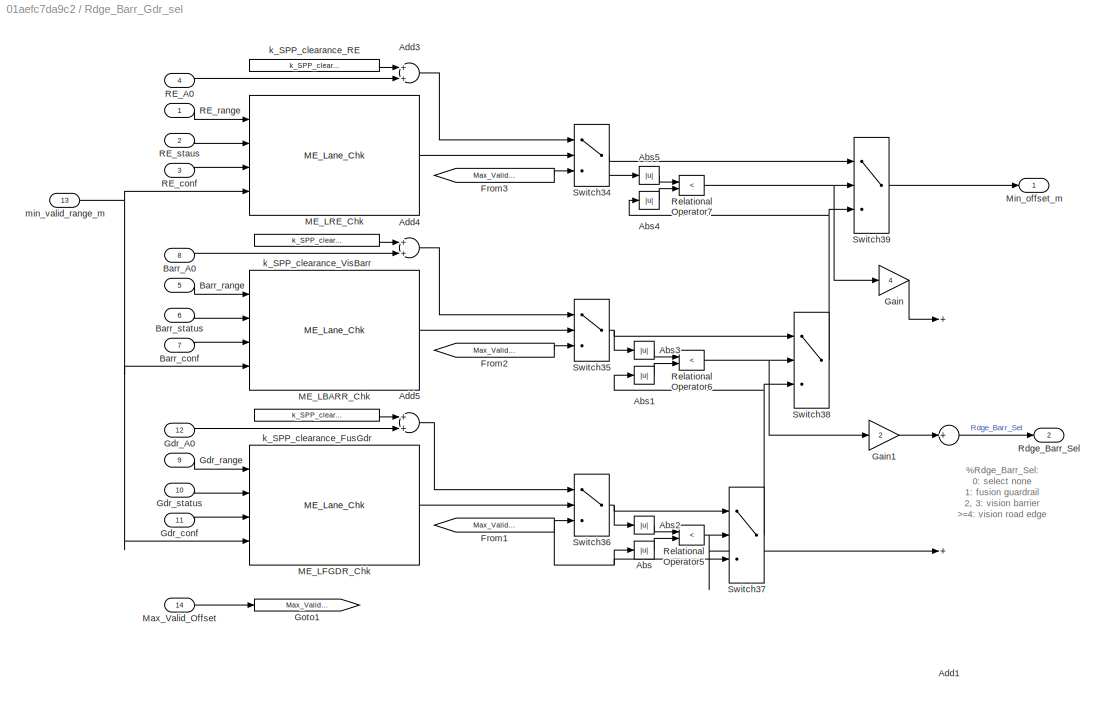
BLOCK [SubSystem] Rdge_Barr_Gdr_sel
  Ports = [14, 2]
  RequestExecContextInheritance = off
BLOCK [Abs] Rdge_Barr_Gdr_sel/Abs
  Description = _GWMH9P3.LCKFN.000_71_
  SaturateOnIntegerOverflow = off
  Tag = {'output',{'type','Float32'},'date',737394.50935303245}
BLOCK [Abs] Rdge_Barr_Gdr_sel/Abs1
  Description = _GWMH9P3.LCKFN.000_72_
  SaturateOnIntegerOverflow = off
  Tag = {'output',{'type','Float32'},'date',737394.50935375004}
BLOCK [Abs] Rdge_Barr_Gdr_sel/Abs2
  Description = _GWMH9P3.LCKFN.000_73_
  SaturateOnIntegerOverflow = off
  Tag = {'output',{'type','Float32'},'date',737394.50935401616}
BLOCK [Abs] Rdge_Barr_Gdr_sel/Abs3
  Description = _GWMH9P3.LCKFN.000_74_
  SaturateOnIntegerOverflow = off
  Tag = {'output',{'type','Float32'},'date',737394.5093542824}
BLOCK [Abs] Rdge_Barr_Gdr_sel/Abs4
  Description = _GWMH9P3.LCKFN.000_75_
  SaturateOnIntegerOverflow = off
  Tag = {'output',{'type','Float32'},'date',737394.50935456017}
BLOCK [Abs] Rdge_Barr_Gdr_sel/Abs5
  Description = _GWMH9P3.LCKFN.000_76_
  SaturateOnIntegerOverflow = off
  Tag = {'output',{'type','Float32'},'date',737394.5093551157}
BLOCK [Sum] Rdge_Barr_Gdr_sel/Add1
  Description = _GWMH9P3.LCKFN.000_77_
  InputSameDT = off
  Inputs = +++
  OutDataTypeStr = Inherit: Inherit via internal rule
  Ports = [3, 1]
  SaturateOnIntegerOverflow = off
  Tag = {'output',{'type','UInt8'},'date',737395.47284584492}
BLOCK [Sum] Rdge_Barr_Gdr_sel/Add3
  Description = _GWMH9P3.LCKFN.000_78_
  InputSameDT = off
  OutDataTypeStr = Inherit: Inherit via internal rule
  Ports = [2, 1]
  SaturateOnIntegerOverflow = off
  Tag = {'output',{'type','Float32'},'date',737394.61890537036}
BLOCK [Sum] Rdge_Barr_Gdr_sel/Add4
  Description = _GWMH9P3.LCKFN.000_79_
  InputSameDT = off
  OutDataTypeStr = Inherit: Inherit via internal rule
  Ports = [2, 1]
  SaturateOnIntegerOverflow = off
  Tag = {'output',{'type','Float32'},'date',737394.61673247686}
BLOCK [Sum] Rdge_Barr_Gdr_sel/Add5
  Description = _GWMH9P3.LCKFN.000_80_
  InputSameDT = off
  OutDataTypeStr = Inherit: Inherit via internal rule
  Ports = [2, 1]
  SaturateOnIntegerOverflow = off
  Tag = {'output',{'type','Float32'},'date',737394.57922549767}
BLOCK [Inport] Rdge_Barr_Gdr_sel/Barr_A0
  Description = _GWMH9P3.LCKFN.000_64_
  IconDisplay = Port number
  Port = 8
  Tag = {'output',{'name','$I_Barr_A0','class','ESR_VC/FCN_ARG','type','Float32'},'date',737395.79016039358}
BLOCK [Inport] Rdge_Barr_Gdr_sel/Barr_conf
  Description = _GWMH9P3.LCKFN.000_63_
  IconDisplay = Port number
  Port = 7
  Tag = {'output',{'name','$I_Barr_conf','class','ESR_VC/FCN_ARG','type','UInt8'},'date',737395.79030952544}
BLOCK [Inport] Rdge_Barr_Gdr_sel/Barr_range
  Description = _GWMH9P3.LCKFN.000_61_
  IconDisplay = Port number
  Port = 5
  Tag = {'output',{'name','$I_Barr_range','class','ESR_VC/FCN_ARG','type','Float32'},'date',737395.79003777774}
BLOCK [Inport] Rdge_Barr_Gdr_sel/Barr_status
  Description = _GWMH9P3.LCKFN.000_62_
  IconDisplay = Port number
  Port = 6
  Tag = {'output',{'name','$I_Barr_status','class','ESR_VC/FCN_ARG','type','UInt8'},'date',737395.79025012732}
BLOCK [From] Rdge_Barr_Gdr_sel/From1
  GotoTag = Max_Valid_Offset
BLOCK [From] Rdge_Barr_Gdr_sel/From2
  GotoTag = Max_Valid_Offset
BLOCK [From] Rdge_Barr_Gdr_sel/From3
  GotoTag = Max_Valid_Offset
BLOCK [Gain] Rdge_Barr_Gdr_sel/Gain
  Description = _GWMH9P3.LCKFN.000_81_
  Gain = 4
  OutDataTypeStr = Inherit: Inherit via internal rule
  ParamDataTypeStr = Inherit: Inherit via internal rule
  SaturateOnIntegerOverflow = off
  Tag = {'output',{'type','UInt8'},'gain',{'type','Int32'},'date',737395.78289579856}
BLOCK [Gain] Rdge_Barr_Gdr_sel/Gain1
  Description = _GWMH9P3.LCKFN.000_82_
  Gain = 2
  OutDataTypeStr = Inherit: Inherit via internal rule
  ParamDataTypeStr = Inherit: Inherit via internal rule
  SaturateOnIntegerOverflow = off
  Tag = {'output',{'type','UInt8'},'gain',{'type','Int32'},'date',737395.78314640047}
BLOCK [Inport] Rdge_Barr_Gdr_sel/Gdr_A0
  Description = _GWMH9P3.LCKFN.000_68_
  IconDisplay = Port number
  Port = 12
  Tag = {'output',{'name','$I_Gdr_A0','class','ESR_VC/FCN_ARG','type','Float32'},'date',737395.7909677662}
BLOCK [Inport] Rdge_Barr_Gdr_sel/Gdr_conf
  Description = _GWMH9P3.LCKFN.000_67_
  IconDisplay = Port number
  Port = 11
  Tag = {'output',{'name','$I_Gdr_conf','class','ESR_VC/FCN_ARG','type','UInt8'},'date',737395.7916990394}
BLOCK [Inport] Rdge_Barr_Gdr_sel/Gdr_range
  Description = _GWMH9P3.LCKFN.000_65_
  IconDisplay = Port number
  Port = 9
  Tag = {'output',{'name','$I_Gdr_range','type','Float32'},'date',737395.79107519682}
BLOCK [Inport] Rdge_Barr_Gdr_sel/Gdr_status
  Description = _GWMH9P3.LCKFN.000_66_
  IconDisplay = Port number
  Port = 10
  Tag = {'output',{'name','$I_Gdr_status','class','ESR_VC/FCN_ARG','type','UInt8'},'date',737395.79137348384}
BLOCK [Goto] Rdge_Barr_Gdr_sel/Goto1
  GotoTag = Max_Valid_Offset
BLOCK [Reference] Rdge_Barr_Gdr_sel/ME_LBARR_Chk  REF=$bdroot/ME_Lane_Chk
  Ports = [4, 1]
  SourceBlock = $bdroot/ME_Lane_Chk
  SourceType = SubSystem
BLOCK [Reference] Rdge_Barr_Gdr_sel/ME_LFGDR_Chk  REF=$bdroot/ME_Lane_Chk
  Ports = [4, 1]
  SourceBlock = $bdroot/ME_Lane_Chk
  SourceType = SubSystem
BLOCK [Reference] Rdge_Barr_Gdr_sel/ME_LRE_Chk  REF=$bdroot/ME_Lane_Chk
  Ports = [4, 1]
  SourceBlock = $bdroot/ME_Lane_Chk
  SourceType = SubSystem
BLOCK [Inport] Rdge_Barr_Gdr_sel/Max_Valid_Offset
  Description = _GWMH9P3.LCKFN.000_70_
  IconDisplay = Port number
  Port = 14
  Tag = {'output',{'name','$I_Max_Valid_Offset','class','ESR_VC/FCN_ARG'},'date',737395.79202499997}
BLOCK [Outport] Rdge_Barr_Gdr_sel/Min_offset_m
  Description = _GWMH9P3.LCKFN.000_95_
  IconDisplay = Port number
  Tag = {'output',{'name','$I_Min_offset_m','type','Float32'},'date',737395.79243659717}
BLOCK [Inport] Rdge_Barr_Gdr_sel/RE_A0
  Description = _GWMH9P3.LCKFN.000_60_
  IconDisplay = Port number
  Port = 4
  Tag = {'output',{'name','$I_RE_A0','class','ESR_VC/FCN_ARG','type','Float32'},'date',737395.78706298606}
BLOCK [Inport] Rdge_Barr_Gdr_sel/RE_conf
  Description = _GWMH9P3.LCKFN.000_59_
  IconDisplay = Port number
  Port = 3
  Tag = {'output',{'name','$I_RE_conf','class','ESR_VC/FCN_ARG','type','UInt8'},'date',737395.78910004627}
BLOCK [Inport] Rdge_Barr_Gdr_sel/RE_range
  Description = _GWMH9P3.LCKFN.000_57_
  IconDisplay = Port number
  Tag = {'output',{'name','$I_RE_range','class','ESR_VC/FCN_ARG','type','Float32'},'date',737395.78900525463}
BLOCK [Inport] Rdge_Barr_Gdr_sel/RE_staus
  Description = _GWMH9P3.LCKFN.000_58_
  IconDisplay = Port number
  Port = 2
  Tag = {'output',{'name','$I_RE_Status','class','ESR_VC/FCN_ARG','type','UInt8'},'date',737395.7890536458}
BLOCK [Outport] Rdge_Barr_Gdr_sel/Rdge_Barr_Sel
  Description = _GWMH9P3.LCKFN.000_96_
  IconDisplay = Port number
  Port = 2
  Tag = {'output',{'name','$I_Rdge_Barr_Sel','type','UInt8'},'date',737395.79255524301}
BLOCK [RelationalOperator] Rdge_Barr_Gdr_sel/Relational Operator5
  Description = _GWMH9P3.LCKFN.000_83_
  InputSameDT = off
  Operator = <
  OutDataTypeStr = boolean
  Ports = [2, 1]
  Tag = {'date',737393.51891306718}
BLOCK [RelationalOperator] Rdge_Barr_Gdr_sel/Relational Operator6
  Description = _GWMH9P3.LCKFN.000_84_
  InputSameDT = off
  Operator = <
  OutDataTypeStr = boolean
  Ports = [2, 1]
  Tag = {'date',737393.51891327545}
BLOCK [RelationalOperator] Rdge_Barr_Gdr_sel/Relational Operator7
  Description = _GWMH9P3.LCKFN.000_85_
  InputSameDT = off
  Operator = <
  OutDataTypeStr = boolean
  Ports = [2, 1]
  Tag = {'date',737393.518913507}
BLOCK [Switch] Rdge_Barr_Gdr_sel/Switch34
  Criteria = u2 ~= 0
  Description = _GWMH9P3.LCKFN.000_86_
  InputSameDT = off
  SaturateOnIntegerOverflow = off
  Tag = {'output',{'type','Float32'},'threshold',{'type','Int32'},'date',737395.47176994209}
BLOCK [Switch] Rdge_Barr_Gdr_sel/Switch35
  Criteria = u2 ~= 0
  Description = _GWMH9P3.LCKFN.000_87_
  InputSameDT = off
  SaturateOnIntegerOverflow = off
  Tag = {'output',{'type','Float32'},'threshold',{'type','Int32'},'date',737395.47187481483}
BLOCK [Switch] Rdge_Barr_Gdr_sel/Switch36
  Criteria = u2 ~= 0
  Description = _GWMH9P3.LCKFN.000_88_
  InputSameDT = off
  SaturateOnIntegerOverflow = off
  Tag = {'output',{'type','Float32'},'threshold',{'type','Int32'},'date',737395.47212880792}
BLOCK [Switch] Rdge_Barr_Gdr_sel/Switch37
  Criteria = u2 ~= 0
  Description = _GWMH9P3.LCKFN.000_89_
  InputSameDT = off
  SaturateOnIntegerOverflow = off
  Tag = {'output',{'type','Float32'},'threshold',{'type','Int32'},'date',737395.4722498958}
BLOCK [Switch] Rdge_Barr_Gdr_sel/Switch38
  Criteria = u2 ~= 0
  Description = _GWMH9P3.LCKFN.000_90_
  InputSameDT = off
  SaturateOnIntegerOverflow = off
  Tag = {'output',{'type','Float32'},'threshold',{'type','Int32'},'date',737395.47235892364}
BLOCK [Switch] Rdge_Barr_Gdr_sel/Switch39
  Criteria = u2 ~= 0
  Description = _GWMH9P3.LCKFN.000_91_
  InputSameDT = off
  SaturateOnIntegerOverflow = off
  Tag = {'output',{'type','Float32'},'threshold',{'type','Int32'},'date',737395.47246385412}
BLOCK [Constant] Rdge_Barr_Gdr_sel/k_SPP_clearance_FusGdr
  Description = _GWMH9P3.LCKFN.000_92_
  SampleTime = -1
  Tag = {'output',{'name','$P','class','EXTERN_CAL','type','Float32'},'date',737394.53117398149}
  Value = k_SPP_clearance_FusGdr
BLOCK [Constant] Rdge_Barr_Gdr_sel/k_SPP_clearance_RE
  Description = _GWMH9P3.LCKFN.000_93_
  SampleTime = -1
  Tag = {'output',{'name','$P','class','EXTERN_CAL','type','Float32'},'date',737394.61885945604}
  Value = k_SPP_clearance_RE
BLOCK [Constant] Rdge_Barr_Gdr_sel/k_SPP_clearance_VisBarr
  Description = _GWMH9P3.LCKFN.000_94_
  SampleTime = -1
  Tag = {'output',{'name','$P','class','EXTERN_CAL','type','Float32'},'date',737394.61815101851}
  Value = k_SPP_clearance_VisBarr
BLOCK [Inport] Rdge_Barr_Gdr_sel/min_valid_range_m
  Description = _GWMH9P3.LCKFN.000_69_
  IconDisplay = Port number
  Port = 13
  Tag = {'output',{'name','$I_min_valid_range_m','class','ESR_VC/FCN_ARG','type','UInt8'},'date',737395.78932809026}
BLOCK [SubSystem] Signal_Sustain
  Description = _GWMAB30P4.LKAFN.000_315_
  Ports = [2, 1]
  RequestExecContextInheritance = off
BLOCK [SubSystem] Signal_Sustain/Sustain_wo_reset
  Description = _GWMAB30P4.LKAFN.000_319_
  ErrorFcn = Stateflow.Translate.translate
  PermitHierarchicalResolution = ExplicitOnly
  Ports = [2, 1]
  RequestExecContextInheritance = off
  SFBlockType = Chart
  TreatAsAtomicUnit = on
BLOCK [Demux] Signal_Sustain/Sustain_wo_reset/ Demux 
  Outputs = 1
  Ports = [1, 1]
BLOCK [S-Function] Signal_Sustain/Sustain_wo_reset/ SFunction 
  EnableBusSupport = off
  FunctionName = sf_sfun
  Parameters = ML_TIME_MSEC
  PortCounts = [2 2]
  Ports = [2, 2]
  SFcnIsStateOwnerBlock = off
  SFunctionDeploymentMode = off
  Tag = Stateflow S-Function LateralControl_fcns_lib 12
BLOCK [Terminator] Signal_Sustain/Sustain_wo_reset/ Terminator 
BLOCK [Inport] Signal_Sustain/Sustain_wo_reset/input
  Description = _GWMAB30P4.LKAFN.000_320_
  IconDisplay = Port number
BLOCK [Inport] Signal_Sustain/Sustain_wo_reset/sustain_time
  Description = _GWMAB30P4.LKAFN.000_321_
  IconDisplay = Port number
  Port = 2
BLOCK [Outport] Signal_Sustain/Sustain_wo_reset/sustain_value
  Description = _GWMAB30P4.LKAFN.000_322_
  IconDisplay = Port number
BLOCK [Inport] Signal_Sustain/input
  Description = _GWMAB30P4.LKAFN.000_316_
  IconDisplay = Port number
BLOCK [Inport] Signal_Sustain/sustain_time
  Description = _GWMAB30P4.LKAFN.000_317_
  IconDisplay = Port number
  Port = 2
BLOCK [Outport] Signal_Sustain/sustain_value
  Description = _GWMAB30P4.LKAFN.000_323_
  IconDisplay = Port number
BLOCK [SubSystem] Signal_Sustain_With_Clear
  Description = _GWMAB30P4.Latctrl.000_162_
  Ports = [3, 1]
  RequestExecContextInheritance = off
BLOCK [Inport] Signal_Sustain_With_Clear/clear
  Description = _GWMAB30P4.LKAFN.000_297_
  IconDisplay = Port number
  Port = 3
BLOCK [Inport] Signal_Sustain_With_Clear/input
  Description = _GWMAB30P4.LKAFN.000_295_
  IconDisplay = Port number
BLOCK [SubSystem] Signal_Sustain_With_Clear/signal_sustain
  Description = _GWMAB30P4.LKAFN.000_299_
  ErrorFcn = Stateflow.Translate.translate
  PermitHierarchicalResolution = ExplicitOnly
  Ports = [3, 1]
  RequestExecContextInheritance = off
  SFBlockType = Chart
  TreatAsAtomicUnit = on
BLOCK [Demux] Signal_Sustain_With_Clear/signal_sustain/ Demux 
  Outputs = 1
  Ports = [1, 1]
BLOCK [S-Function] Signal_Sustain_With_Clear/signal_sustain/ SFunction 
  EnableBusSupport = off
  FunctionName = sf_sfun
  Parameters = ML_TIME_MSEC
  PortCounts = [3 2]
  Ports = [3, 2]
  SFcnIsStateOwnerBlock = off
  SFunctionDeploymentMode = off
  Tag = Stateflow S-Function LateralControl_fcns_lib 106
BLOCK [Terminator] Signal_Sustain_With_Clear/signal_sustain/ Terminator 
BLOCK [Inport] Signal_Sustain_With_Clear/signal_sustain/clear
  Description = _GWMAB30P4.LKAFN.000_302_
  IconDisplay = Port number
  Port = 3
BLOCK [Inport] Signal_Sustain_With_Clear/signal_sustain/input
  Description = _GWMAB30P4.LKAFN.000_300_
  IconDisplay = Port number
BLOCK [Inport] Signal_Sustain_With_Clear/signal_sustain/sustain_time
  Description = _GWMAB30P4.LKAFN.000_301_
  IconDisplay = Port number
  Port = 2
BLOCK [Outport] Signal_Sustain_With_Clear/signal_sustain/sustain_value
  Description = _GWMAB30P4.LKAFN.000_303_
  IconDisplay = Port number
BLOCK [Inport] Signal_Sustain_With_Clear/sustain_time
  Description = _GWMAB30P4.LKAFN.000_296_
  IconDisplay = Port number
  Port = 2
BLOCK [Outport] Signal_Sustain_With_Clear/sustain_value
  Description = _GWMAB30P4.LKAFN.000_304_
  IconDisplay = Port number
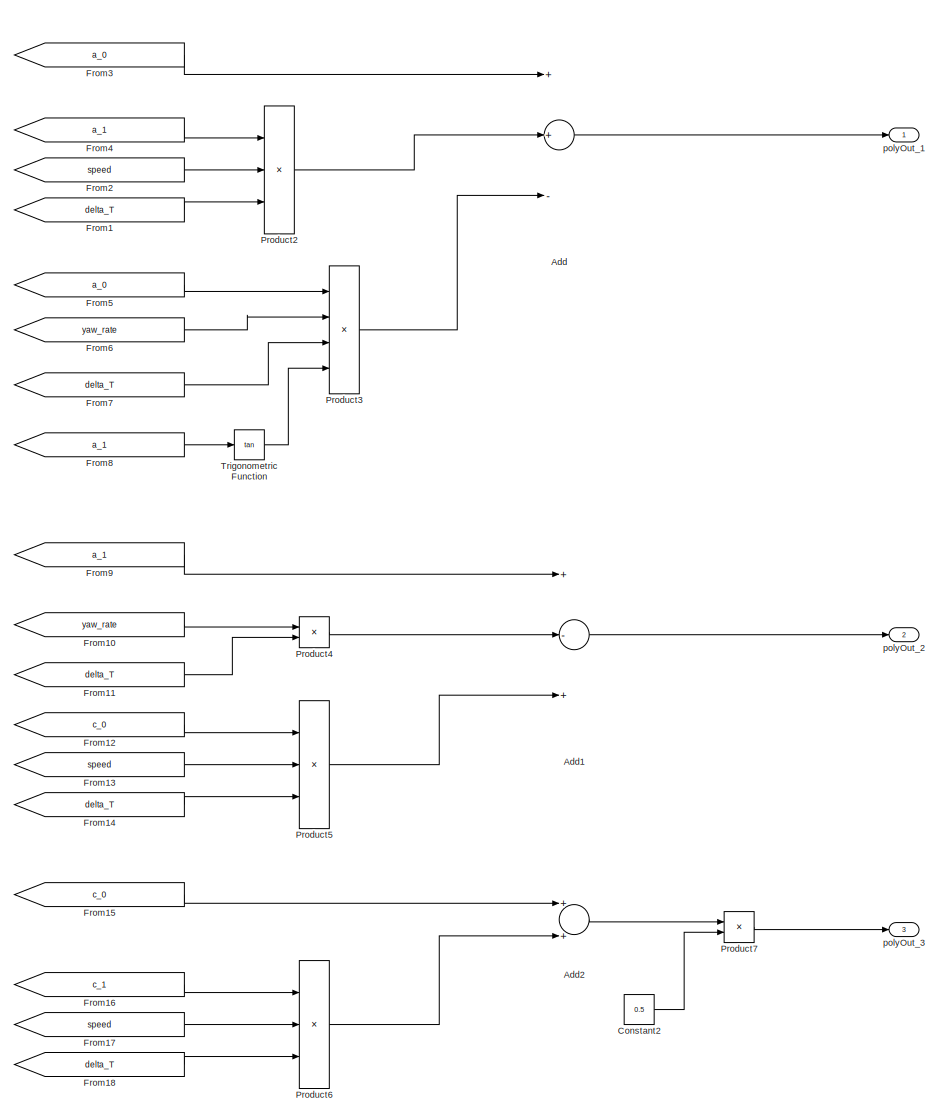
[diagram: Transform_VCS - part 1/2, right side, full height]
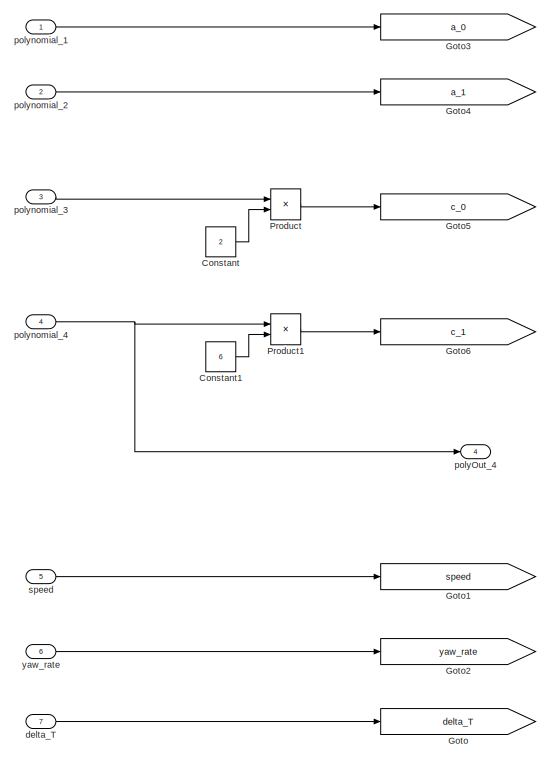
[diagram: Transform_VCS - part 2/2, middle left region]
BLOCK [SubSystem] Transform_VCS
  Ports = [7, 4]
  RequestExecContextInheritance = off
BLOCK [Sum] Transform_VCS/Add
  Description = _GWMH9P4.LCKFN.000_60_
  InputSameDT = off
  Inputs = ++-
  OutDataTypeStr = Inherit: Inherit via internal rule
  Ports = [3, 1]
  SaturateOnIntegerOverflow = off
  Tag = {'output',{'type','Float32'},'date',737462.83802695607}
BLOCK [Sum] Transform_VCS/Add1
  Description = _GWMH9P4.LCKFN.000_61_
  InputSameDT = off
  Inputs = +-+
  OutDataTypeStr = Inherit: Inherit via internal rule
  Ports = [3, 1]
  SaturateOnIntegerOverflow = off
  Tag = {'output',{'type','Float32'},'date',737462.83816357644}
BLOCK [Sum] Transform_VCS/Add2
  Description = _GWMH9P4.LCKFN.000_62_
  InputSameDT = off
  OutDataTypeStr = Inherit: Inherit via internal rule
  Ports = [2, 1]
  SaturateOnIntegerOverflow = off
  Tag = {'output',{'type','Float32'},'date',737462.83826973382}
BLOCK [Constant] Transform_VCS/Constant
  Description = _GWMH9P4.LCKFN.000_63_
  Tag = {'output',{'type','Int32'},'date',737462.49267282407}
  Value = 2
BLOCK [Constant] Transform_VCS/Constant1
  Description = _GWMH9P4.LCKFN.000_64_
  Tag = {'output',{'type','Int32'},'date',737462.49267299764}
  Value = 6
BLOCK [Constant] Transform_VCS/Constant2
  Description = _GWMH9P4.LCKFN.000_65_
  Tag = {'output',{'type','Int32'},'date',737462.49267318286}
  Value = 0.5
BLOCK [From] Transform_VCS/From1
  GotoTag = delta_T
BLOCK [From] Transform_VCS/From10
  GotoTag = yaw_rate
BLOCK [From] Transform_VCS/From11
  GotoTag = delta_T
BLOCK [From] Transform_VCS/From12
  GotoTag = c_0
BLOCK [From] Transform_VCS/From13
  GotoTag = speed
BLOCK [From] Transform_VCS/From14
  GotoTag = delta_T
BLOCK [From] Transform_VCS/From15
  GotoTag = c_0
BLOCK [From] Transform_VCS/From16
  GotoTag = c_1
BLOCK [From] Transform_VCS/From17
  GotoTag = speed
BLOCK [From] Transform_VCS/From18
  GotoTag = delta_T
BLOCK [From] Transform_VCS/From2
  GotoTag = speed
BLOCK [From] Transform_VCS/From3
  GotoTag = a_0
BLOCK [From] Transform_VCS/From4
  GotoTag = a_1
BLOCK [From] Transform_VCS/From5
  GotoTag = a_0
BLOCK [From] Transform_VCS/From6
  GotoTag = yaw_rate
BLOCK [From] Transform_VCS/From7
  GotoTag = delta_T
BLOCK [From] Transform_VCS/From8
  GotoTag = a_1
BLOCK [From] Transform_VCS/From9
  GotoTag = a_1
BLOCK [Goto] Transform_VCS/Goto
  GotoTag = delta_T
BLOCK [Goto] Transform_VCS/Goto1
  GotoTag = speed
BLOCK [Goto] Transform_VCS/Goto2
  GotoTag = yaw_rate
BLOCK [Goto] Transform_VCS/Goto3
  GotoTag = a_0
BLOCK [Goto] Transform_VCS/Goto4
  GotoTag = a_1
BLOCK [Goto] Transform_VCS/Goto5
  GotoTag = c_0
BLOCK [Goto] Transform_VCS/Goto6
  GotoTag = c_1
BLOCK [Product] Transform_VCS/Product
  Description = _GWMH9P4.LCKFN.000_66_
  InputSameDT = off
  OutDataTypeStr = Inherit: Inherit via internal rule
  Ports = [2, 1]
  RndMeth = Floor
  SaturateOnIntegerOverflow = off
  Tag = {'output',{'type','Float32'},'date',737462.83772556717}
BLOCK [Product] Transform_VCS/Product1
  Description = _GWMH9P4.LCKFN.000_67_
  InputSameDT = off
  OutDataTypeStr = Inherit: Inherit via internal rule
  Ports = [2, 1]
  RndMeth = Floor
  SaturateOnIntegerOverflow = off
  Tag = {'output',{'type','Float32'},'date',737462.83779719903}
BLOCK [Product] Transform_VCS/Product2
  Description = _GWMH9P4.LCKFN.000_68_
  InputSameDT = off
  Inputs = 3
  OutDataTypeStr = Inherit: Inherit via internal rule
  Ports = [3, 1]
  RndMeth = Floor
  SaturateOnIntegerOverflow = off
  Tag = {'output',{'type','Float32'},'date',737462.83785875002}
BLOCK [Product] Transform_VCS/Product3
  Description = _GWMH9P4.LCKFN.000_69_
  InputSameDT = off
  Inputs = 4
  OutDataTypeStr = Inherit: Inherit via internal rule
  Ports = [4, 1]
  RndMeth = Floor
  SaturateOnIntegerOverflow = off
  Tag = {'output',{'type','Float32'},'date',737462.83791134262}
BLOCK [Product] Transform_VCS/Product4
  Description = _GWMH9P4.LCKFN.000_70_
  InputSameDT = off
  OutDataTypeStr = Inherit: Inherit via internal rule
  Ports = [2, 1]
  RndMeth = Floor
  SaturateOnIntegerOverflow = off
  Tag = {'output',{'type','Float32'},'date',737462.83807886578}
BLOCK [Product] Transform_VCS/Product5
  Description = _GWMH9P4.LCKFN.000_71_
  InputSameDT = off
  Inputs = 3
  OutDataTypeStr = Inherit: Inherit via internal rule
  Ports = [3, 1]
  RndMeth = Floor
  SaturateOnIntegerOverflow = off
  Tag = {'output',{'type','Float32'},'date',737462.83812184026}
BLOCK [Product] Transform_VCS/Product6
  Description = _GWMH9P4.LCKFN.000_72_
  InputSameDT = off
  Inputs = 3
  OutDataTypeStr = Inherit: Inherit via internal rule
  Ports = [3, 1]
  RndMeth = Floor
  SaturateOnIntegerOverflow = off
  Tag = {'output',{'type','Float32'},'date',737462.8382226968}
BLOCK [Product] Transform_VCS/Product7
  Description = _GWMH9P4.LCKFN.000_73_
  InputSameDT = off
  OutDataTypeStr = Inherit: Inherit via internal rule
  Ports = [2, 1]
  RndMeth = Floor
  SaturateOnIntegerOverflow = off
  Tag = {'output',{'type','Float32'},'date',737462.83833524305}
BLOCK [Trigonometry] Transform_VCS/Trigonometric Function
  Description = _GWMH9P4.LCKFN.000_74_
  Operator = tan
  Ports = [1, 1]
  Tag = {'output',{'type','Float32'},'date',737462.73073488427}
BLOCK [Inport] Transform_VCS/delta_T
  Description = _GWMH9P4.LCKFN.000_59_
  IconDisplay = Port number
  Port = 7
BLOCK [Outport] Transform_VCS/polyOut_1
  Description = _GWMH9P4.LCKFN.000_75_
  IconDisplay = Port number
BLOCK [Outport] Transform_VCS/polyOut_2
  Description = _GWMH9P4.LCKFN.000_76_
  IconDisplay = Port number
  Port = 2
BLOCK [Outport] Transform_VCS/polyOut_3
  Description = _GWMH9P4.LCKFN.000_77_
  IconDisplay = Port number
  Port = 3
BLOCK [Outport] Transform_VCS/polyOut_4
  Description = _GWMH9P4.LCKFN.000_78_
  IconDisplay = Port number
  Port = 4
BLOCK [Inport] Transform_VCS/polynomial_1
  Description = _GWMH9P4.LCKFN.000_53_
  IconDisplay = Port number
BLOCK [Inport] Transform_VCS/polynomial_2
  Description = _GWMH9P4.LCKFN.000_54_
  IconDisplay = Port number
  Port = 2
BLOCK [Inport] Transform_VCS/polynomial_3
  Description = _GWMH9P4.LCKFN.000_55_
  IconDisplay = Port number
  Port = 3
BLOCK [Inport] Transform_VCS/polynomial_4
  Description = _GWMH9P4.LCKFN.000_56_
  IconDisplay = Port number
  Port = 4
BLOCK [Inport] Transform_VCS/speed
  Description = _GWMH9P4.LCKFN.000_57_
  IconDisplay = Port number
  Port = 5
BLOCK [Inport] Transform_VCS/yaw_rate
  Description = _GWMH9P4.LCKFN.000_58_
  IconDisplay = Port number
  Port = 6
BLOCK [SubSystem] Trigger Hold Counter
  Ports = [2, 2]
  RequestExecContextInheritance = off
BLOCK [Outport] Trigger Hold Counter/Counter
  Description = _GACA26P4.LCK.000_242_
  IconDisplay = Port number
  Port = 2
BLOCK [Outport] Trigger Hold Counter/Out
  Description = _GACA26P4.LCK.000_241_
  IconDisplay = Port number
BLOCK [Inport] Trigger Hold Counter/Trigger
  Description = _GACA26P4.LCK.000_235_
  IconDisplay = Port number
BLOCK [SubSystem] Trigger Hold Counter/Trigger Hold
  ErrorFcn = Stateflow.Translate.translate
  PermitHierarchicalResolution = ExplicitOnly
  Ports = [2, 2]
  RequestExecContextInheritance = off
  SFBlockType = Chart
  TreatAsAtomicUnit = on
BLOCK [Demux] Trigger Hold Counter/Trigger Hold/ Demux 
  Outputs = 1
  Ports = [1, 1]
BLOCK [S-Function] Trigger Hold Counter/Trigger Hold/ SFunction 
  EnableBusSupport = off
  FunctionName = sf_sfun
  Parameters = ML_TIME_MSEC
  PortCounts = [2 3]
  Ports = [2, 3]
  SFcnIsStateOwnerBlock = off
  SFunctionDeploymentMode = off
  Tag = Stateflow S-Function LateralControl_fcns_lib 18
BLOCK [Terminator] Trigger Hold Counter/Trigger Hold/ Terminator 
BLOCK [Outport] Trigger Hold Counter/Trigger Hold/Out
  Description = _GACA26P4.LCK.000_239_
  IconDisplay = Port number
BLOCK [Inport] Trigger Hold Counter/Trigger Hold/Trigger
  Description = _GACA26P4.LCK.000_237_
  IconDisplay = Port number
BLOCK [Outport] Trigger Hold Counter/Trigger Hold/count
  Description = _GACA26P4.LCK.000_240_
  IconDisplay = Port number
  Port = 2
BLOCK [Inport] Trigger Hold Counter/Trigger Hold/hold_time
  Description = _GACA26P4.LCK.000_238_
  IconDisplay = Port number
  Port = 2
BLOCK [Inport] Trigger Hold Counter/hold_time
  Description = _GACA26P4.LCK.000_236_
  IconDisplay = Port number
  Port = 2
BLOCK [SubSystem] Turn_Off_Delay_Time
  Ports = [3, 1]
  RTWSystemCode = Inline
  RequestExecContextInheritance = off
BLOCK [Logic] Turn_Off_Delay_Time/AND
  Operator = OR
  OutDataTypeStr = boolean
  Ports = [2, 1]
BLOCK [Constant] Turn_Off_Delay_Time/Constant Value1
  OutDataTypeStr = Inherit: Inherit via back propagation
  Value = 0
BLOCK [Constant] Turn_Off_Delay_Time/Constant Value2
  OutDataTypeStr = Inherit: Inherit via back propagation
  Value = 0
BLOCK [SubSystem] Turn_Off_Delay_Time/EdgeFalling1
  AttributesFormatString = <Init Codition = %<vinit>>
  Ports = [1, 1]
  RTWSystemCode = Inline
  RequestExecContextInheritance = off
  ShowPortLabels = none
BLOCK [Logic] Turn_Off_Delay_Time/EdgeFalling1/AND
  OutDataTypeStr = boolean
  Ports = [2, 1]
BLOCK [Logic] Turn_Off_Delay_Time/EdgeFalling1/OR1
  Operator = NOT
  OutDataTypeStr = boolean
  Ports = [1, 1]
BLOCK [UnitDelay] Turn_Off_Delay_Time/EdgeFalling1/Unit_Delay
  AttributesFormatString = <init value = %<InitialCondition>>\n<sample time = %<SampleTime>>
  InitialCondition = vinit
  InputProcessing = Elements as channels (sample based)
  SampleTime = -1
BLOCK [Inport] Turn_Off_Delay_Time/EdgeFalling1/u
  IconDisplay = Port number
  OutDataTypeStr = boolean
BLOCK [Outport] Turn_Off_Delay_Time/EdgeFalling1/y
  IconDisplay = Port number
  OutDataTypeStr = boolean
BLOCK [RelationalOperator] Turn_Off_Delay_Time/Greater Than
  Operator = >
  OutDataTypeStr = boolean
  Ports = [2, 1]
BLOCK [MinMax] Turn_Off_Delay_Time/Minimum
  Function = max
  Inputs = 2
  Ports = [2, 1]
  RndMeth = Zero
BLOCK [Sum] Turn_Off_Delay_Time/Summation
  Inputs = -+
  Ports = [2, 1]
  RndMeth = Zero
BLOCK [Switch] Turn_Off_Delay_Time/Switch
  AttributesFormatString = <%<Criteria>>
  Criteria = u2 ~= 0
  RndMeth = Zero
  SaturateOnIntegerOverflow = off
  Threshold = 1
BLOCK [Inport] Turn_Off_Delay_Time/T
  IconDisplay = Port number
BLOCK [UnitDelay] Turn_Off_Delay_Time/Unit_Delay
  AttributesFormatString = <init value = %<InitialCondition>>\n<sample time = %<SampleTime>>
  InputProcessing = Elements as channels (sample based)
  SampleTime = -1
BLOCK [Inport] Turn_Off_Delay_Time/dT
  IconDisplay = Port number
  Port = 3
BLOCK [Inport] Turn_Off_Delay_Time/u
  IconDisplay = Port number
  Port = 2
BLOCK [Outport] Turn_Off_Delay_Time/y
  IconDisplay = Port number
BLOCK [SubSystem] Turn_On_Delay_Time
  Ports = [3, 1]
  RTWSystemCode = Inline
  RequestExecContextInheritance = off
BLOCK [Logic] Turn_On_Delay_Time/AND
  OutDataTypeStr = boolean
  Ports = [2, 1]
BLOCK [Constant] Turn_On_Delay_Time/Constant Value1
  OutDataTypeStr = Inherit: Inherit via back propagation
  Value = 0
BLOCK [SubSystem] Turn_On_Delay_Time/EdgeRising1
  AttributesFormatString = <Init Codition = %<vinit>>
  Ports = [1, 1]
  RTWSystemCode = Inline
  RequestExecContextInheritance = off
  ShowPortLabels = none
BLOCK [Logic] Turn_On_Delay_Time/EdgeRising1/AND
  OutDataTypeStr = boolean
  Ports = [2, 1]
BLOCK [Logic] Turn_On_Delay_Time/EdgeRising1/OR1
  Operator = NOT
  OutDataTypeStr = boolean
  Ports = [1, 1]
BLOCK [UnitDelay] Turn_On_Delay_Time/EdgeRising1/Unit_Delay
  AttributesFormatString = <init value = %<InitialCondition>>\n<sample time = %<SampleTime>>
  InitialCondition = vinit
  InputProcessing = Elements as channels (sample based)
  SampleTime = -1
BLOCK [Inport] Turn_On_Delay_Time/EdgeRising1/u1
  IconDisplay = Port number
  OutDataTypeStr = boolean
BLOCK [Outport] Turn_On_Delay_Time/EdgeRising1/y1
  IconDisplay = Port number
  OutDataTypeStr = boolean
BLOCK [RelationalOperator] Turn_On_Delay_Time/Greater Than
  OutDataTypeStr = boolean
  Ports = [2, 1]
BLOCK [MinMax] Turn_On_Delay_Time/Minimum
  Inputs = 2
  Ports = [2, 1]
  RndMeth = Zero
  SaturateOnIntegerOverflow = off
BLOCK [Logic] Turn_On_Delay_Time/OR
  Operator = OR
  OutDataTypeStr = boolean
  Ports = [2, 1]
BLOCK [Logic] Turn_On_Delay_Time/OR1
  Operator = NOT
  OutDataTypeStr = boolean
  Ports = [1, 1]
BLOCK [Sum] Turn_On_Delay_Time/Summation
  OutDataTypeStr = Inherit: Inherit via internal rule
  Ports = [2, 1]
  RndMeth = Zero
  SaturateOnIntegerOverflow = off
BLOCK [Switch] Turn_On_Delay_Time/Switch1
  AttributesFormatString = <%<Criteria>>
  Criteria = u2 ~= 0
  RndMeth = Zero
  SaturateOnIntegerOverflow = off
  Threshold = 1
BLOCK [Inport] Turn_On_Delay_Time/T
  IconDisplay = Port number
BLOCK [UnitDelay] Turn_On_Delay_Time/Unit_Delay
  AttributesFormatString = <init value = %<InitialCondition>>\n<sample time = %<SampleTime>>
  InputProcessing = Elements as channels (sample based)
  SampleTime = -1
BLOCK [Inport] Turn_On_Delay_Time/dT
  IconDisplay = Port number
  Port = 3
BLOCK [Inport] Turn_On_Delay_Time/u
  IconDisplay = Port number
  Port = 2
BLOCK [Outport] Turn_On_Delay_Time/y
  IconDisplay = Port number
BLOCK [SubSystem] Unit_Delay_IC
  Ports = [2, 1]
  RequestExecContextInheritance = off
BLOCK [Constant] Unit_Delay_IC/Constant
  Description = _GWMAB30P4.LKAFN.000_348_
BLOCK [Inport] Unit_Delay_IC/IC
  Description = _GWMAB30P4.LKAFN.000_347_
  IconDisplay = Port number
  Port = 2
BLOCK [Switch] Unit_Delay_IC/Switch
  Description = _GWMAB30P4.LKAFN.000_349_
  InputSameDT = off
  SaturateOnIntegerOverflow = off
  Threshold = 0.5
BLOCK [UnitDelay] Unit_Delay_IC/Unit Delay
  Description = _GWMAB30P4.LKAFN.000_350_
  InputProcessing = Elements as channels (sample based)
  SampleTime = -1
BLOCK [UnitDelay] Unit_Delay_IC/Unit Delay1
  Description = _GWMAB30P4.LKAFN.000_351_
  InputProcessing = Elements as channels (sample based)
  SampleTime = -1
BLOCK [Inport] Unit_Delay_IC/n
  Description = _GWMAB30P4.LKAFN.000_346_
  IconDisplay = Port number
BLOCK [Outport] Unit_Delay_IC/n-1
  Description = _GWMAB30P4.LKAFN.000_352_
  IconDisplay = Port number
ANNOTATION (root): to check whether all the bits selected are ture
ANNOTATION (root): to check whether the bit is zero or not
ANNOTATION First_Order_Lag_Filter_LIB/Filter_Gain: Filter Gain = T / (T + t) T=> Loop time and t => time constant
ANNOTATION First_Order_Lag_Filter_LIB/Filter_Gain: T
ANNOTATION First_Order_Lag_Filter_LIB/Filter_Gain: t
ANNOTATION Rate_Limiter: SP_A0 Signal Filter and Rate Limiter
ANNOTATION Rdge_Barr_Gdr_sel: %Rdge_Barr_Sel: 0: select none 1: fusion guardrail 2, 3: vision barrier >=4: vision road edge
ANNOTATION Turn_Off_Delay_Time: Turn Off Delay Time
ANNOTATION Turn_On_Delay_Time: Turn On Delay Time
LINE Bit_To_Integer_16/Add:1 -> Bit_To_Integer_16/Integer:1
LINE Bit_To_Integer_16/Bit0:1 -> Bit_To_Integer_16/Gain 0:1
LINE Bit_To_Integer_16/Bit10:1 -> Bit_To_Integer_16/Gain10:1
LINE Bit_To_Integer_16/Bit11:1 -> Bit_To_Integer_16/Gain11:1
LINE Bit_To_Integer_16/Bit12:1 -> Bit_To_Integer_16/Gain12:1
LINE Bit_To_Integer_16/Bit13:1 -> Bit_To_Integer_16/Gain13:1
LINE Bit_To_Integer_16/Bit14:1 -> Bit_To_Integer_16/Gain14:1
LINE Bit_To_Integer_16/Bit15:1 -> Bit_To_Integer_16/Gain15:1
LINE Bit_To_Integer_16/Bit1:1 -> Bit_To_Integer_16/Gain1:1
LINE Bit_To_Integer_16/Bit2:1 -> Bit_To_Integer_16/Gain2:1
LINE Bit_To_Integer_16/Bit3:1 -> Bit_To_Integer_16/Gain3:1
LINE Bit_To_Integer_16/Bit4:1 -> Bit_To_Integer_16/Gain4:1
LINE Bit_To_Integer_16/Bit5:1 -> Bit_To_Integer_16/Gain5:1
LINE Bit_To_Integer_16/Bit6:1 -> Bit_To_Integer_16/Gain6:1
LINE Bit_To_Integer_16/Bit7:1 -> Bit_To_Integer_16/Gain7:1
LINE Bit_To_Integer_16/Bit8:1 -> Bit_To_Integer_16/Gain8:1
LINE Bit_To_Integer_16/Bit9:1 -> Bit_To_Integer_16/Gain9:1
LINE Bit_To_Integer_16/Gain 0:1 -> Bit_To_Integer_16/Add:1
LINE Bit_To_Integer_16/Gain10:1 -> Bit_To_Integer_16/Add:11
LINE Bit_To_Integer_16/Gain11:1 -> Bit_To_Integer_16/Add:12
LINE Bit_To_Integer_16/Gain12:1 -> Bit_To_Integer_16/Add:13
LINE Bit_To_Integer_16/Gain13:1 -> Bit_To_Integer_16/Add:14
LINE Bit_To_Integer_16/Gain14:1 -> Bit_To_Integer_16/Add:15
LINE Bit_To_Integer_16/Gain15:1 -> Bit_To_Integer_16/Add:16
LINE Bit_To_Integer_16/Gain1:1 -> Bit_To_Integer_16/Add:2
LINE Bit_To_Integer_16/Gain2:1 -> Bit_To_Integer_16/Add:3
LINE Bit_To_Integer_16/Gain3:1 -> Bit_To_Integer_16/Add:4
LINE Bit_To_Integer_16/Gain4:1 -> Bit_To_Integer_16/Add:5
LINE Bit_To_Integer_16/Gain5:1 -> Bit_To_Integer_16/Add:6
LINE Bit_To_Integer_16/Gain6:1 -> Bit_To_Integer_16/Add:7
LINE Bit_To_Integer_16/Gain7:1 -> Bit_To_Integer_16/Add:8
LINE Bit_To_Integer_16/Gain8:1 -> Bit_To_Integer_16/Add:9
LINE Bit_To_Integer_16/Gain9:1 -> Bit_To_Integer_16/Add:10
LINE CR_inhibit/CR_inhibit:1 -> CR_inhibit/warn_output:1
LINE CR_inhibit/current_input:1 -> CR_inhibit/CR_inhibit:1
LINE CR_inhibit/k_CR_Threshold:1 -> CR_inhibit/CR_inhibit:3
LINE CR_inhibit/k_maintain_msec:1 -> CR_inhibit/CR_inhibit:2
NET CheckBitsTure/BitValue:1 -> CheckBitsTure/Data Type Conversion26:1, CheckBitsTure/Relational_Operator4:2
NET CheckBitsTure/Bitwise Operator5:1 -> CheckBitsTure/BitSel_Out:1, CheckBitsTure/Relational_Operator4:1
LINE CheckBitsTure/Data Type Conversion26:1 -> CheckBitsTure/Bitwise Operator5:2
LINE CheckBitsTure/Relational_Operator4:1 -> CheckBitsTure/BitSelSame_St:1
LINE CheckBitsTure/VariableValue:1 -> CheckBitsTure/Bitwise Operator5:1
LINE CheckNoneZeroBit/BitValue:1 -> CheckNoneZeroBit/Data Type Conversion:1
NET CheckNoneZeroBit/Bitwise AND:1 -> CheckNoneZeroBit/Data Type Conversion2:1, CheckNoneZeroBit/Relational Operator14:1
LINE CheckNoneZeroBit/Constant8:1 -> CheckNoneZeroBit/Relational Operator14:2
LINE CheckNoneZeroBit/Data Type Conversion2:1 -> CheckNoneZeroBit/BitNZero_Out:1
LINE CheckNoneZeroBit/Data Type Conversion:1 -> CheckNoneZeroBit/Bitwise AND:2
LINE CheckNoneZeroBit/Relational Operator14:1 -> CheckNoneZeroBit/BitNZero_St:1
LINE CheckNoneZeroBit/VariableValue:1 -> CheckNoneZeroBit/Bitwise AND:1
LINE CountTrig/CountTrig:1 -> CountTrig/Out:1
LINE CountTrig/Counttrig_time:1 -> CountTrig/CountTrig:2
LINE CountTrig/Trigger:1 -> CountTrig/CountTrig:1
LINE Delay_Trig/Delay_Trig:1 -> Delay_Trig/Output:1
LINE Delay_Trig/Delay_Trig_Time:1 -> Delay_Trig/Delay_Trig:2
LINE Delay_Trig/Input:1 -> Delay_Trig/Delay_Trig:1
LINE Delay_Trig_Cnt/Delay_Cnt:1 -> Delay_Trig_Cnt/Delay_Trig:2
LINE Delay_Trig_Cnt/Delay_Trig:1 -> Delay_Trig_Cnt/Output:1
LINE Delay_Trig_Cnt/Input:1 -> Delay_Trig_Cnt/Delay_Trig:1
LINE Determinant/Add:1 -> Determinant/Out1:1
LINE Determinant/In10:1 -> Determinant/Product14:1
LINE Determinant/In11:1 -> Determinant/Product14:2
LINE Determinant/In12:1 -> Determinant/Product14:3
LINE Determinant/In13:1 -> Determinant/Product12:1
LINE Determinant/In14:1 -> Determinant/Product12:2
LINE Determinant/In15:1 -> Determinant/Product12:3
LINE Determinant/In16:1 -> Determinant/Product13:1
LINE Determinant/In17:1 -> Determinant/Product13:2
LINE Determinant/In18:1 -> Determinant/Product13:3
LINE Determinant/In1:1 -> Determinant/Product9:1
LINE Determinant/In2:1 -> Determinant/Product9:2
LINE Determinant/In3:1 -> Determinant/Product9:3
LINE Determinant/In4:1 -> Determinant/Product10:1
LINE Determinant/In5:1 -> Determinant/Product10:2
LINE Determinant/In6:1 -> Determinant/Product10:3
LINE Determinant/In7:1 -> Determinant/Product11:1
LINE Determinant/In8:1 -> Determinant/Product11:2
LINE Determinant/In9:1 -> Determinant/Product11:3
LINE Determinant/Product10:1 -> Determinant/Add:2
LINE Determinant/Product11:1 -> Determinant/Add:3
LINE Determinant/Product12:1 -> Determinant/Add:5
LINE Determinant/Product13:1 -> Determinant/Add:6
LINE Determinant/Product14:1 -> Determinant/Add:4
LINE Determinant/Product9:1 -> Determinant/Add:1
NET First_Order_Lag_Filter_LIB/Filter_Gain/CL_TIME:1 -> First_Order_Lag_Filter_LIB/Filter_Gain/Product1:1, First_Order_Lag_Filter_LIB/Filter_Gain/Sum2:1
LINE First_Order_Lag_Filter_LIB/Filter_Gain/Product1:1 -> First_Order_Lag_Filter_LIB/Filter_Gain/Gain:1
LINE First_Order_Lag_Filter_LIB/Filter_Gain/Sum2:1 -> First_Order_Lag_Filter_LIB/Filter_Gain/Product1:2
LINE First_Order_Lag_Filter_LIB/Filter_Gain/time_constant:1 -> First_Order_Lag_Filter_LIB/Filter_Gain/Sum2:2
LINE First_Order_Lag_Filter_LIB/Filter_Gain:1 -> First_Order_Lag_Filter_LIB/Product:1
LINE First_Order_Lag_Filter_LIB/Product:1 -> First_Order_Lag_Filter_LIB/Sum1:1
NET First_Order_Lag_Filter_LIB/Saturation:1 -> First_Order_Lag_Filter_LIB/Unit Delay:1, First_Order_Lag_Filter_LIB/filtered_output:1
LINE First_Order_Lag_Filter_LIB/Sum1:1 -> First_Order_Lag_Filter_LIB/Saturation:1
LINE First_Order_Lag_Filter_LIB/Sum:1 -> First_Order_Lag_Filter_LIB/Product:2
NET First_Order_Lag_Filter_LIB/Unit Delay:1 -> First_Order_Lag_Filter_LIB/Sum1:2, First_Order_Lag_Filter_LIB/Sum:2
LINE First_Order_Lag_Filter_LIB/filt_loop_time_msec:1 -> First_Order_Lag_Filter_LIB/Filter_Gain:1
LINE First_Order_Lag_Filter_LIB/filt_tau_msec:1 -> First_Order_Lag_Filter_LIB/Filter_Gain:2
LINE First_Order_Lag_Filter_LIB/unfiltered_input:1 -> First_Order_Lag_Filter_LIB/Sum:1
NET ME_Adj_LM_Chk/LW_bound_type:1 -> ME_Adj_LM_Chk/Relational Operator2:1, ME_Adj_LM_Chk/Relational Operator3:2
LINE ME_Adj_LM_Chk/Logical Operator1:1 -> ME_Adj_LM_Chk/Rdge_Barr_Valid:1
LINE ME_Adj_LM_Chk/Logical Operator2:1 -> ME_Adj_LM_Chk/Logical Operator1:3
LINE ME_Adj_LM_Chk/Logical Operator3:1 -> ME_Adj_LM_Chk/Logical Operator6:1
LINE ME_Adj_LM_Chk/Logical Operator4:1 -> ME_Adj_LM_Chk/Logical Operator1:4
LINE ME_Adj_LM_Chk/Logical Operator5:1 -> ME_Adj_LM_Chk/Logical Operator6:2
LINE ME_Adj_LM_Chk/Logical Operator6:1 -> ME_Adj_LM_Chk/Logical Operator1:2
NET ME_Adj_LM_Chk/Min_offset:1 -> ME_Adj_LM_Chk/Relational Operator4:1, ME_Adj_LM_Chk/Relational Operator5:2
LINE ME_Adj_LM_Chk/POLY_TYPE_FUSED_BARRIER1:1 -> ME_Adj_LM_Chk/Relational Operator4:2
LINE ME_Adj_LM_Chk/POLY_TYPE_FUSED_BARRIER2:1 -> ME_Adj_LM_Chk/Relational Operator1:2
LINE ME_Adj_LM_Chk/POLY_TYPE_FUSED_BARRIER3:1 -> ME_Adj_LM_Chk/Relational Operator7:2
LINE ME_Adj_LM_Chk/POLY_TYPE_FUSED_BARRIER:1 -> ME_Adj_LM_Chk/Relational Operator2:2
LINE ME_Adj_LM_Chk/POLY_TYPE_LM_BARRIER1:1 -> ME_Adj_LM_Chk/Relational Operator5:1
LINE ME_Adj_LM_Chk/POLY_TYPE_LM_BARRIER2:1 -> ME_Adj_LM_Chk/Relational Operator6:1
LINE ME_Adj_LM_Chk/POLY_TYPE_LM_BARRIER3:1 -> ME_Adj_LM_Chk/Relational Operator8:1
LINE ME_Adj_LM_Chk/POLY_TYPE_LM_BARRIER:1 -> ME_Adj_LM_Chk/Relational Operator3:1
LINE ME_Adj_LM_Chk/Relational Operator1:1 -> ME_Adj_LM_Chk/Logical Operator3:2
LINE ME_Adj_LM_Chk/Relational Operator2:1 -> ME_Adj_LM_Chk/Logical Operator2:2
LINE ME_Adj_LM_Chk/Relational Operator3:1 -> ME_Adj_LM_Chk/Logical Operator2:1
LINE ME_Adj_LM_Chk/Relational Operator4:1 -> ME_Adj_LM_Chk/Logical Operator4:2
LINE ME_Adj_LM_Chk/Relational Operator5:1 -> ME_Adj_LM_Chk/Logical Operator4:1
LINE ME_Adj_LM_Chk/Relational Operator6:1 -> ME_Adj_LM_Chk/Logical Operator3:1
LINE ME_Adj_LM_Chk/Relational Operator7:1 -> ME_Adj_LM_Chk/Logical Operator5:2
LINE ME_Adj_LM_Chk/Relational Operator8:1 -> ME_Adj_LM_Chk/Logical Operator5:1
NET ME_Adj_LM_Chk/SP_LW_state:1 -> ME_Adj_LM_Chk/Relational Operator1:1, ME_Adj_LM_Chk/Relational Operator6:2, ME_Adj_LM_Chk/Relational Operator7:1, ME_Adj_LM_Chk/Relational Operator8:2
LINE ME_Adj_LM_Chk/SP_type_valid:1 -> ME_Adj_LM_Chk/Logical Operator1:1
LINE ME_Lane_Chk/Data Type Conversion:1 -> ME_Lane_Chk/Delay_Trig:1
LINE ME_Lane_Chk/Delay_Trig:1 -> ME_Lane_Chk/Logical Operator3:1
LINE ME_Lane_Chk/LM_TJA_conf:1 -> ME_Lane_Chk/Relational Operator1:1
LINE ME_Lane_Chk/LM_max_range_ME:1 -> ME_Lane_Chk/Relational Operator8:1
NET ME_Lane_Chk/LM_status_ME:1 -> ME_Lane_Chk/Relational Operator15:1, ME_Lane_Chk/Relational Operator18:2
LINE ME_Lane_Chk/Logical Operator1:1 -> ME_Lane_Chk/ME_LM_Valid:1
LINE ME_Lane_Chk/Logical Operator3:1 -> ME_Lane_Chk/Logical Operator1:1
LINE ME_Lane_Chk/Logical Operator:1 -> ME_Lane_Chk/Logical Operator1:2
LINE ME_Lane_Chk/Relational Operator15:1 -> ME_Lane_Chk/Logical Operator:2
LINE ME_Lane_Chk/Relational Operator18:1 -> ME_Lane_Chk/Logical Operator:1
LINE ME_Lane_Chk/Relational Operator1:1 -> ME_Lane_Chk/Logical Operator1:3
LINE ME_Lane_Chk/Relational Operator8:1 -> ME_Lane_Chk/Data Type Conversion:1
LINE ME_Lane_Chk/TJA_SP_CONF_LOW:1 -> ME_Lane_Chk/Relational Operator1:2
LINE ME_Lane_Chk/coast_measure:1 -> ME_Lane_Chk/Relational Operator15:2
LINE ME_Lane_Chk/k_LCK_Valid_Range_Remain_Tm_s:1 -> ME_Lane_Chk/Delay_Trig:2
LINE ME_Lane_Chk/min_valid_range:1 -> ME_Lane_Chk/Relational Operator8:2
LINE ME_Lane_Chk/update_measure:1 -> ME_Lane_Chk/Relational Operator18:1
LINE RateLimiter_LimitInport/Difference Inputs1:1 -> RateLimiter_LimitInport/SaturationDynamic:2
NET RateLimiter_LimitInport/Difference Inputs2:1 -> RateLimiter_LimitInport/Unit Delay:1, RateLimiter_LimitInport/Y:1
LINE RateLimiter_LimitInport/SaturationDynamic:1 -> RateLimiter_LimitInport/Difference Inputs2:1
NET RateLimiter_LimitInport/Unit Delay:1 -> RateLimiter_LimitInport/Difference Inputs1:2, RateLimiter_LimitInport/Difference Inputs2:2
LINE RateLimiter_LimitInport/delta fall limit:1 -> RateLimiter_LimitInport/SaturationDynamic:3
LINE RateLimiter_LimitInport/delta rise limit:1 -> RateLimiter_LimitInport/SaturationDynamic:1
NET RateLimiter_LimitInport/dt:1 -> RateLimiter_LimitInport/delta fall limit:2, RateLimiter_LimitInport/delta rise limit:2
LINE RateLimiter_LimitInport/lo:1 -> RateLimiter_LimitInport/delta fall limit:1
LINE RateLimiter_LimitInport/u:1 -> RateLimiter_LimitInport/Difference Inputs1:1
LINE RateLimiter_LimitInport/up:1 -> RateLimiter_LimitInport/delta rise limit:1
LINE Rate_Limiter/Gain1:1 -> Rate_Limiter/Product2:1
LINE Rate_Limiter/Gain2:1 -> Rate_Limiter/Gain:1
LINE Rate_Limiter/Gain:1 -> Rate_Limiter/Product:1
NET Rate_Limiter/Product2:1 -> Rate_Limiter/Relational Operator1:1, Rate_Limiter/Switch2:1
NET Rate_Limiter/Product:1 -> Rate_Limiter/Relational Operator4:1, Rate_Limiter/Switch3:1
LINE Rate_Limiter/Rate_Limited_Input:1 -> Rate_Limiter/Sum:1
NET Rate_Limiter/Rate_Max:1 -> Rate_Limiter/Gain1:1, Rate_Limiter/Gain2:1
LINE Rate_Limiter/Relational Operator1:1 -> Rate_Limiter/Switch2:2
LINE Rate_Limiter/Relational Operator4:1 -> Rate_Limiter/Switch3:2
NET Rate_Limiter/Sum1:1 -> Rate_Limiter/Rate_Limited_Output:1, Rate_Limiter/Unit Delay:1
NET Rate_Limiter/Sum:1 -> Rate_Limiter/Relational Operator1:2, Rate_Limiter/Switch2:3
NET Rate_Limiter/Switch2:1 -> Rate_Limiter/Relational Operator4:2, Rate_Limiter/Switch3:3
LINE Rate_Limiter/Switch3:1 -> Rate_Limiter/Sum1:1
NET Rate_Limiter/Unit Delay:1 -> Rate_Limiter/Sum1:2, Rate_Limiter/Sum:2
LINE Rate_Limiter/k_ovrly_torq_rate_min1:1 -> Rate_Limiter/Product:2
LINE Rate_Limiter/k_ovrly_torq_rate_min2:1 -> Rate_Limiter/Product2:2
LINE Rdge_Barr_Gdr_sel/Abs1:1 -> Rdge_Barr_Gdr_sel/Relational Operator6:2
LINE Rdge_Barr_Gdr_sel/Abs2:1 -> Rdge_Barr_Gdr_sel/Relational Operator5:1
LINE Rdge_Barr_Gdr_sel/Abs3:1 -> Rdge_Barr_Gdr_sel/Relational Operator6:1
LINE Rdge_Barr_Gdr_sel/Abs4:1 -> Rdge_Barr_Gdr_sel/Relational Operator7:2
LINE Rdge_Barr_Gdr_sel/Abs5:1 -> Rdge_Barr_Gdr_sel/Relational Operator7:1
LINE Rdge_Barr_Gdr_sel/Abs:1 -> Rdge_Barr_Gdr_sel/Relational Operator5:2
LINE Rdge_Barr_Gdr_sel/Add1:1 -> Rdge_Barr_Gdr_sel/Rdge_Barr_Sel:1
LINE Rdge_Barr_Gdr_sel/Add3:1 -> Rdge_Barr_Gdr_sel/Switch34:1
LINE Rdge_Barr_Gdr_sel/Add4:1 -> Rdge_Barr_Gdr_sel/Switch35:1
LINE Rdge_Barr_Gdr_sel/Add5:1 -> Rdge_Barr_Gdr_sel/Switch36:1
LINE Rdge_Barr_Gdr_sel/Barr_A0:1 -> Rdge_Barr_Gdr_sel/Add4:2
LINE Rdge_Barr_Gdr_sel/Barr_conf:1 -> Rdge_Barr_Gdr_sel/ME_LBARR_Chk:3
LINE Rdge_Barr_Gdr_sel/Barr_range:1 -> Rdge_Barr_Gdr_sel/ME_LBARR_Chk:1
LINE Rdge_Barr_Gdr_sel/Barr_status:1 -> Rdge_Barr_Gdr_sel/ME_LBARR_Chk:2
NET Rdge_Barr_Gdr_sel/From1:1 -> Rdge_Barr_Gdr_sel/Abs:1, Rdge_Barr_Gdr_sel/Switch36:3, Rdge_Barr_Gdr_sel/Switch37:3
LINE Rdge_Barr_Gdr_sel/From2:1 -> Rdge_Barr_Gdr_sel/Switch35:3
LINE Rdge_Barr_Gdr_sel/From3:1 -> Rdge_Barr_Gdr_sel/Switch34:3
LINE Rdge_Barr_Gdr_sel/Gain1:1 -> Rdge_Barr_Gdr_sel/Add1:2
LINE Rdge_Barr_Gdr_sel/Gain:1 -> Rdge_Barr_Gdr_sel/Add1:1
LINE Rdge_Barr_Gdr_sel/Gdr_A0:1 -> Rdge_Barr_Gdr_sel/Add5:2
LINE Rdge_Barr_Gdr_sel/Gdr_conf:1 -> Rdge_Barr_Gdr_sel/ME_LFGDR_Chk:3
LINE Rdge_Barr_Gdr_sel/Gdr_range:1 -> Rdge_Barr_Gdr_sel/ME_LFGDR_Chk:1
LINE Rdge_Barr_Gdr_sel/Gdr_status:1 -> Rdge_Barr_Gdr_sel/ME_LFGDR_Chk:2
LINE Rdge_Barr_Gdr_sel/ME_LBARR_Chk:1 -> Rdge_Barr_Gdr_sel/Switch35:2
LINE Rdge_Barr_Gdr_sel/ME_LFGDR_Chk:1 -> Rdge_Barr_Gdr_sel/Switch36:2
LINE Rdge_Barr_Gdr_sel/ME_LRE_Chk:1 -> Rdge_Barr_Gdr_sel/Switch34:2
LINE Rdge_Barr_Gdr_sel/Max_Valid_Offset:1 -> Rdge_Barr_Gdr_sel/Goto1:1
LINE Rdge_Barr_Gdr_sel/RE_A0:1 -> Rdge_Barr_Gdr_sel/Add3:2
LINE Rdge_Barr_Gdr_sel/RE_conf:1 -> Rdge_Barr_Gdr_sel/ME_LRE_Chk:3
LINE Rdge_Barr_Gdr_sel/RE_range:1 -> Rdge_Barr_Gdr_sel/ME_LRE_Chk:1
LINE Rdge_Barr_Gdr_sel/RE_staus:1 -> Rdge_Barr_Gdr_sel/ME_LRE_Chk:2
NET Rdge_Barr_Gdr_sel/Relational Operator5:1 -> Rdge_Barr_Gdr_sel/Add1:3, Rdge_Barr_Gdr_sel/Switch37:2
NET Rdge_Barr_Gdr_sel/Relational Operator6:1 -> Rdge_Barr_Gdr_sel/Gain1:1, Rdge_Barr_Gdr_sel/Switch38:2
NET Rdge_Barr_Gdr_sel/Relational Operator7:1 -> Rdge_Barr_Gdr_sel/Gain:1, Rdge_Barr_Gdr_sel/Switch39:2
NET Rdge_Barr_Gdr_sel/Switch34:1 -> Rdge_Barr_Gdr_sel/Abs5:1, Rdge_Barr_Gdr_sel/Switch39:1
NET Rdge_Barr_Gdr_sel/Switch35:1 -> Rdge_Barr_Gdr_sel/Abs3:1, Rdge_Barr_Gdr_sel/Switch38:1
NET Rdge_Barr_Gdr_sel/Switch36:1 -> Rdge_Barr_Gdr_sel/Abs2:1, Rdge_Barr_Gdr_sel/Switch37:1
NET Rdge_Barr_Gdr_sel/Switch37:1 -> Rdge_Barr_Gdr_sel/Abs1:1, Rdge_Barr_Gdr_sel/Switch38:3
NET Rdge_Barr_Gdr_sel/Switch38:1 -> Rdge_Barr_Gdr_sel/Abs4:1, Rdge_Barr_Gdr_sel/Switch39:3
LINE Rdge_Barr_Gdr_sel/Switch39:1 -> Rdge_Barr_Gdr_sel/Min_offset_m:1
LINE Rdge_Barr_Gdr_sel/k_SPP_clearance_FusGdr:1 -> Rdge_Barr_Gdr_sel/Add5:1
LINE Rdge_Barr_Gdr_sel/k_SPP_clearance_RE:1 -> Rdge_Barr_Gdr_sel/Add3:1
LINE Rdge_Barr_Gdr_sel/k_SPP_clearance_VisBarr:1 -> Rdge_Barr_Gdr_sel/Add4:1
NET Rdge_Barr_Gdr_sel/min_valid_range_m:1 -> Rdge_Barr_Gdr_sel/ME_LBARR_Chk:4, Rdge_Barr_Gdr_sel/ME_LFGDR_Chk:4, Rdge_Barr_Gdr_sel/ME_LRE_Chk:4
LINE Signal_Sustain/Sustain_wo_reset:1 -> Signal_Sustain/sustain_value:1
LINE Signal_Sustain/input:1 -> Signal_Sustain/Sustain_wo_reset:1
LINE Signal_Sustain/sustain_time:1 -> Signal_Sustain/Sustain_wo_reset:2
LINE Signal_Sustain_With_Clear/clear:1 -> Signal_Sustain_With_Clear/signal_sustain:3
LINE Signal_Sustain_With_Clear/input:1 -> Signal_Sustain_With_Clear/signal_sustain:1
LINE Signal_Sustain_With_Clear/signal_sustain:1 -> Signal_Sustain_With_Clear/sustain_value:1
LINE Signal_Sustain_With_Clear/sustain_time:1 -> Signal_Sustain_With_Clear/signal_sustain:2
LINE Transform_VCS/Add1:1 -> Transform_VCS/polyOut_2:1
LINE Transform_VCS/Add2:1 -> Transform_VCS/Product7:1
LINE Transform_VCS/Add:1 -> Transform_VCS/polyOut_1:1
LINE Transform_VCS/Constant1:1 -> Transform_VCS/Product1:2
LINE Transform_VCS/Constant2:1 -> Transform_VCS/Product7:2
LINE Transform_VCS/Constant:1 -> Transform_VCS/Product:2
LINE Transform_VCS/From10:1 -> Transform_VCS/Product4:1
LINE Transform_VCS/From11:1 -> Transform_VCS/Product4:2
LINE Transform_VCS/From12:1 -> Transform_VCS/Product5:1
LINE Transform_VCS/From13:1 -> Transform_VCS/Product5:2
LINE Transform_VCS/From14:1 -> Transform_VCS/Product5:3
LINE Transform_VCS/From15:1 -> Transform_VCS/Add2:1
LINE Transform_VCS/From16:1 -> Transform_VCS/Product6:1
LINE Transform_VCS/From17:1 -> Transform_VCS/Product6:2
LINE Transform_VCS/From18:1 -> Transform_VCS/Product6:3
LINE Transform_VCS/From1:1 -> Transform_VCS/Product2:3
LINE Transform_VCS/From2:1 -> Transform_VCS/Product2:2
LINE Transform_VCS/From3:1 -> Transform_VCS/Add:1
LINE Transform_VCS/From4:1 -> Transform_VCS/Product2:1
LINE Transform_VCS/From5:1 -> Transform_VCS/Product3:1
LINE Transform_VCS/From6:1 -> Transform_VCS/Product3:2
LINE Transform_VCS/From7:1 -> Transform_VCS/Product3:3
LINE Transform_VCS/From8:1 -> Transform_VCS/Trigonometric Function:1
LINE Transform_VCS/From9:1 -> Transform_VCS/Add1:1
LINE Transform_VCS/Product1:1 -> Transform_VCS/Goto6:1
LINE Transform_VCS/Product2:1 -> Transform_VCS/Add:2
LINE Transform_VCS/Product3:1 -> Transform_VCS/Add:3
LINE Transform_VCS/Product4:1 -> Transform_VCS/Add1:2
LINE Transform_VCS/Product5:1 -> Transform_VCS/Add1:3
LINE Transform_VCS/Product6:1 -> Transform_VCS/Add2:2
LINE Transform_VCS/Product7:1 -> Transform_VCS/polyOut_3:1
LINE Transform_VCS/Product:1 -> Transform_VCS/Goto5:1
LINE Transform_VCS/Trigonometric Function:1 -> Transform_VCS/Product3:4
LINE Transform_VCS/delta_T:1 -> Transform_VCS/Goto:1
LINE Transform_VCS/polynomial_1:1 -> Transform_VCS/Goto3:1
LINE Transform_VCS/polynomial_2:1 -> Transform_VCS/Goto4:1
LINE Transform_VCS/polynomial_3:1 -> Transform_VCS/Product:1
NET Transform_VCS/polynomial_4:1 -> Transform_VCS/Product1:1, Transform_VCS/polyOut_4:1
LINE Transform_VCS/speed:1 -> Transform_VCS/Goto1:1
LINE Transform_VCS/yaw_rate:1 -> Transform_VCS/Goto2:1
LINE Trigger Hold Counter/Trigger Hold:1 -> Trigger Hold Counter/Out:1
LINE Trigger Hold Counter/Trigger Hold:2 -> Trigger Hold Counter/Counter:1
LINE Trigger Hold Counter/Trigger:1 -> Trigger Hold Counter/Trigger Hold:1
LINE Trigger Hold Counter/hold_time:1 -> Trigger Hold Counter/Trigger Hold:2
LINE Turn_Off_Delay_Time/AND:1 -> Turn_Off_Delay_Time/y:1
LINE Turn_Off_Delay_Time/Constant Value1:1 -> Turn_Off_Delay_Time/Minimum:2
LINE Turn_Off_Delay_Time/Constant Value2:1 -> Turn_Off_Delay_Time/Greater Than:2
LINE Turn_Off_Delay_Time/EdgeFalling1/AND:1 -> Turn_Off_Delay_Time/EdgeFalling1/y:1
LINE Turn_Off_Delay_Time/EdgeFalling1/OR1:1 -> Turn_Off_Delay_Time/EdgeFalling1/AND:1
LINE Turn_Off_Delay_Time/EdgeFalling1/Unit_Delay:1 -> Turn_Off_Delay_Time/EdgeFalling1/AND:2
NET Turn_Off_Delay_Time/EdgeFalling1/u:1 -> Turn_Off_Delay_Time/EdgeFalling1/OR1:1, Turn_Off_Delay_Time/EdgeFalling1/Unit_Delay:1
LINE Turn_Off_Delay_Time/EdgeFalling1:1 -> Turn_Off_Delay_Time/Switch:2
LINE Turn_Off_Delay_Time/Greater Than:1 -> Turn_Off_Delay_Time/AND:2
LINE Turn_Off_Delay_Time/Minimum:1 -> Turn_Off_Delay_Time/Switch:3
LINE Turn_Off_Delay_Time/Summation:1 -> Turn_Off_Delay_Time/Minimum:1
NET Turn_Off_Delay_Time/Switch:1 -> Turn_Off_Delay_Time/Greater Than:1, Turn_Off_Delay_Time/Unit_Delay:1
LINE Turn_Off_Delay_Time/T:1 -> Turn_Off_Delay_Time/Switch:1
LINE Turn_Off_Delay_Time/Unit_Delay:1 -> Turn_Off_Delay_Time/Summation:2
LINE Turn_Off_Delay_Time/dT:1 -> Turn_Off_Delay_Time/Summation:1
NET Turn_Off_Delay_Time/u:1 -> Turn_Off_Delay_Time/AND:1, Turn_Off_Delay_Time/EdgeFalling1:1
LINE Turn_On_Delay_Time/AND:1 -> Turn_On_Delay_Time/y:1
LINE Turn_On_Delay_Time/Constant Value1:1 -> Turn_On_Delay_Time/Switch1:1
LINE Turn_On_Delay_Time/EdgeRising1/AND:1 -> Turn_On_Delay_Time/EdgeRising1/y1:1
LINE Turn_On_Delay_Time/EdgeRising1/OR1:1 -> Turn_On_Delay_Time/EdgeRising1/AND:2
LINE Turn_On_Delay_Time/EdgeRising1/Unit_Delay:1 -> Turn_On_Delay_Time/EdgeRising1/OR1:1
NET Turn_On_Delay_Time/EdgeRising1/u1:1 -> Turn_On_Delay_Time/EdgeRising1/AND:1, Turn_On_Delay_Time/EdgeRising1/Unit_Delay:1
LINE Turn_On_Delay_Time/EdgeRising1:1 -> Turn_On_Delay_Time/OR:2
LINE Turn_On_Delay_Time/Greater Than:1 -> Turn_On_Delay_Time/AND:2
LINE Turn_On_Delay_Time/Minimum:1 -> Turn_On_Delay_Time/Switch1:3
LINE Turn_On_Delay_Time/OR1:1 -> Turn_On_Delay_Time/OR:1
LINE Turn_On_Delay_Time/OR:1 -> Turn_On_Delay_Time/Switch1:2
LINE Turn_On_Delay_Time/Summation:1 -> Turn_On_Delay_Time/Minimum:2
NET Turn_On_Delay_Time/Switch1:1 -> Turn_On_Delay_Time/Greater Than:1, Turn_On_Delay_Time/Unit_Delay:1
NET Turn_On_Delay_Time/T:1 -> Turn_On_Delay_Time/Greater Than:2, Turn_On_Delay_Time/Minimum:1
LINE Turn_On_Delay_Time/Unit_Delay:1 -> Turn_On_Delay_Time/Summation:2
LINE Turn_On_Delay_Time/dT:1 -> Turn_On_Delay_Time/Summation:1
NET Turn_On_Delay_Time/u:1 -> Turn_On_Delay_Time/AND:1, Turn_On_Delay_Time/EdgeRising1:1, Turn_On_Delay_Time/OR1:1
LINE Unit_Delay_IC/Constant:1 -> Unit_Delay_IC/Unit Delay:1
LINE Unit_Delay_IC/IC:1 -> Unit_Delay_IC/Switch:3
LINE Unit_Delay_IC/Switch:1 -> Unit_Delay_IC/n-1:1
LINE Unit_Delay_IC/Unit Delay1:1 -> Unit_Delay_IC/Switch:1
LINE Unit_Delay_IC/Unit Delay:1 -> Unit_Delay_IC/Switch:2
LINE Unit_Delay_IC/n:1 -> Unit_Delay_IC/Unit Delay1:1
note: NET lines group one-source signal fan-out (src -> all destinations, sorted); 1:1 wires keep LINE
CHART Delay_Trig/Delay_Trig states=3 transitions=5
  STATE_LABEL 'OFF\nen: Delay_Trig =0;\nduration= 0;'
  STATE_LABEL 'ON\nen: Delay_Trig = 0;\nduration=duration+ML_TIME_SEC;\ndu:duration=duration+ML_TIME_SEC;'
  STATE_LABEL 'Trig\nen: Delay_Trig = 1;'
CHART Signal_Sustain/Sustain_wo_reset states=2 transitions=4
  STATE_LABEL 'Hold\nen:sustain_value = input;\ndu:i=i+ML_TIME_MSEC;'
  STATE_LABEL 'Standby\nen:\ni=0;\ndu:\nsustain_value = 0;'
CHART Trigger Hold Counter/Trigger Hold states=0 transitions=9
CHART Delay_Trig_Cnt/Delay_Trig states=3 transitions=5
  STATE_LABEL 'OFF\nen: Delay_Trig =0;\ncount= 0;'
  STATE_LABEL 'ON\nen: Delay_Trig = 0;\ncount++;\ndu:count++;'
  STATE_LABEL 'Trig\nen: Delay_Trig = 1;'
CHART CountTrig/CountTrig states=0 transitions=9
CHART Signal_Sustain_With_Clear/signal_sustain states=3 transitions=4
  STATE_LABEL 'ML_TIME_MSEC = 10ms'
  STATE_LABEL 'Standby\nen:\ni = 0;\ndu:\nsustain_value = 0;'
  STATE_LABEL 'Hold\nen: sustain_value = input;\ndu:i = i + ML_TIME_MSEC;'
CHART CR_inhibit/CR_inhibit states=4 transitions=5
  STATE_LABEL 'ML_TIME_MSEC = 10ms'
  STATE_LABEL 'Input_Standby\nen:\ninput_value = 0;\ni = 0;\ndu:\nwarn_output = 0;'
  STATE_LABEL 'WaitPeriod\nen:\ni = i + ML_TIME_MSEC;\ndu:\nwarn_output = 0;\ni = i + ML_TIME_MSEC;'
  STATE_LABEL 'Output\ndu:\nwarn_output =1;\ni = 0;'
